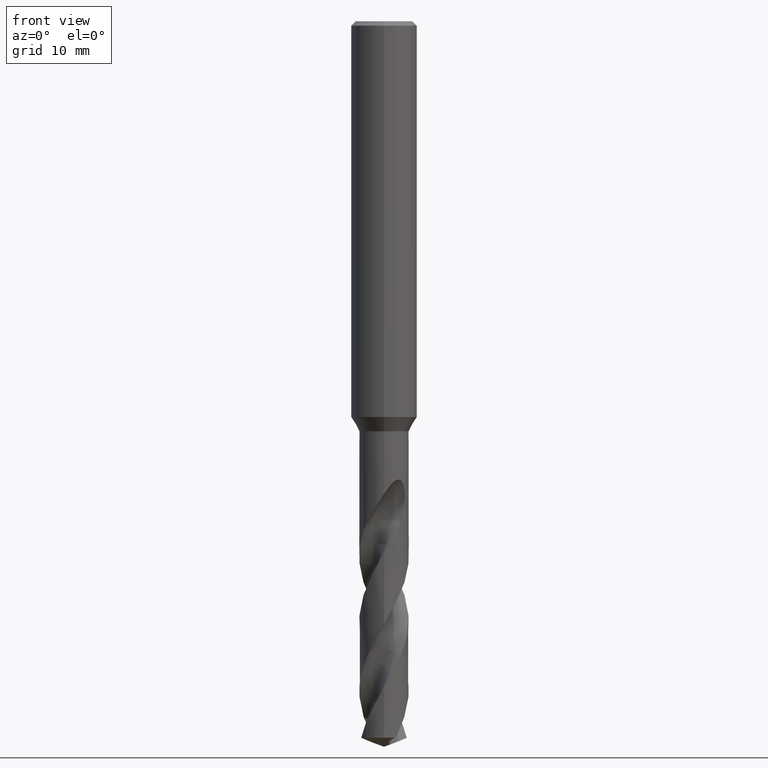
[diagram: clean part render]
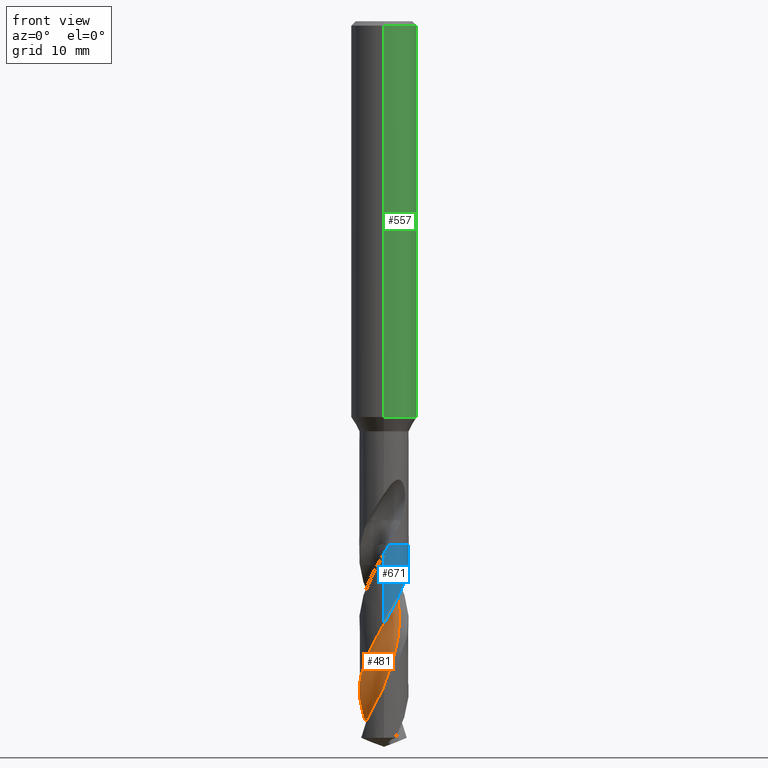
[diagram: same view with three faces highlighted in distinct colors, each labeled with its STEP entity id]
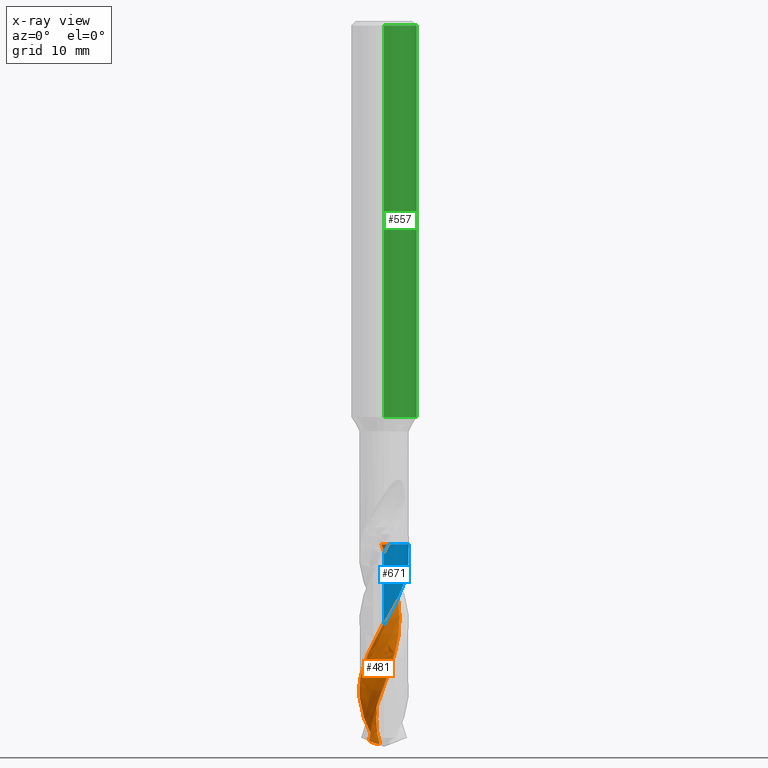
[diagram: x-ray of the same camera — body ghosted, the three highlighted faces saturated]
A machine part, front view with three faces highlighted in distinct colors.
The next image is the same camera in x-ray (body ghosted, the three faces saturated) — at least one of them is partly hidden behind the body in this view.
Their STEP definitions:

[orange] entity #481 — the highlighted face is a freeform B-spline surface patch.
#335=VERTEX_POINT('',#864);
#341=EDGE_CURVE('',#335,#753,#870,.T.);
#481=ADVANCED_FACE('',(#1023),#1024,.F.);
#615=EDGE_CURVE('',#667,#645,#1171,.T.);
#645=VERTEX_POINT('',#1206);
#667=VERTEX_POINT('',#1230);
#681=VERTEX_POINT('',#1245);
#725=EDGE_CURVE('',#645,#681,#1292,.T.);
#727=EDGE_CURVE('',#753,#667,#1294,.T.);
#753=VERTEX_POINT('',#1321);
#759=EDGE_CURVE('',#681,#335,#1327,.T.);
#864=CARTESIAN_POINT('',(4.35672677849002E-015,-2.24994116683028,-54.8375680020493));
#870=B_SPLINE_CURVE_WITH_KNOTS('',3,(#1758,#1759,#1760,#1761,#1762,#1763,#1764,#1765,#1766,#1767,#1768,#1769,#1770,#1771,#1772,#1773,#1774,#1775,#1776,#1777,#1778,#1779,#1780,#1781,#1782,#1783,#1784,#1785,#1786,#1787,#1788,#1789,#1790,#1791,#1792,#1793,#1794,#1795,#1796,#1797,#1798,#1799,#1800,#1801,#1802,#1803,#1804,#1805,#1806,#1807,#1808,#1809,#1810,#1811,#1812,#1813,#1814,#1815,#1816,#1817),.UNSPECIFIED.,.F.,.F.,(4,2,2,2,2,2,2,2,2,2,2,2,2,2,2,2,2,2,2,2,2,2,2,2,2,2,2,2,2,4),(0.0,0.853601909909963,1.63127977140847,2.504231706037,3.37787073468174,3.81238491333424,4.55730642763613,5.30153908279479,6.04699632696929,6.79174299426735,7.53771288042835,8.28297301522484,9.02943797553279,9.77527184504001,10.5222643891847,11.2686922805101,12.0162436342276,12.7632269582524,13.5113122212123,14.2588971648399,15.0075646392093,15.3458657610275,15.6615206101952,16.8516258495368,17.296264231137,18.0784674231418,18.6644412950028,19.5459813488053,19.765688042533,20.4223074424713),.UNSPECIFIED.);
#1023=FACE_OUTER_BOUND('',#2749,.T.);
#1024=B_SPLINE_SURFACE_WITH_KNOTS('',3,3,((#2750,#2751,#2752,#2753,#2754,#2755,#2756,#2757,#2758,#2759,#2760,#2761,#2762,#2763,#2764,#2765,#2766,#2767,#2768,#2769,#2770,#2771,#2772,#2773,#2774,#2775,#2776,#2777,#2778,#2779,#2780,#2781,#2782,#2783,#2784,#2785,#2786,#2787),(#2788,#2789,#2790,#2791,#2792,#2793,#2794,#2795,#2796,#2797,#2798,#2799,#2800,#2801,#2802,#2803,#2804,#2805,#2806,#2807,#2808,#2809,#2810,#2811,#2812,#2813,#2814,#2815,#2816,#2817,#2818,#2819,#2820,#2821,#2822,#2823,#2824,#2825),(#2826,#2827,#2828,#2829,#2830,#2831,#2832,#2833,#2834,#2835,#2836,#2837,#2838,#2839,#2840,#2841,#2842,#2843,#2844,#2845,#2846,#2847,#2848,#2849,#2850,#2851,#2852,#2853,#2854,#2855,#2856,#2857,#2858,#2859,#2860,#2861,#2862,#2863),(#2864,#2865,#2866,#2867,#2868,#2869,#2870,#2871,#2872,#2873,#2874,#2875,#2876,#2877,#2878,#2879,#2880,#2881,#2882,#2883,#2884,#2885,#2886,#2887,#2888,#2889,#2890,#2891,#2892,#2893,#2894,#2895,#2896,#2897,#2898,#2899,#2900,#2901),(#2902,#2903,#2904,#2905,#2906,#2907,#2908,#2909,#2910,#2911,#2912,#2913,#2914,#2915,#2916,#2917,#2918,#2919,#2920,#2921,#2922,#2923,#2924,#2925,#2926,#2927,#2928,#2929,#2930,#2931,#2932,#2933,#2934,#2935,#2936,#2937,#2938,#2939),(#2940,#2941,#2942,#2943,#2944,#2945,#2946,#2947,#2948,#2949,#2950,#2951,#2952,#2953,#2954,#2955,#2956,#2957,#2958,#2959,#2960,#2961,#2962,#2963,#2964,#2965,#2966,#2967,#2968,#2969,#2970,#2971,#2972,#2973,#2974,#2975,#2976,#2977),(#2978,#2979,#2980,#2981,#2982,#2983,#2984,#2985,#2986,#2987,#2988,#2989,#2990,#2991,#2992,#2993,#2994,#2995,#2996,#2997,#2998,#2999,#3000,#3001,#3002,#3003,#3004,#3005,#3006,#3007,#3008,#3009,#3010,#3011,#3012,#3013,#3014,#3015),(#3016,#3017,#3018,#3019,#3020,#3021,#3022,#3023,#3024,#3025,#3026,#3027,#3028,#3029,#3030,#3031,#3032,#3033,#3034,#3035,#3036,#3037,#3038,#3039,#3040,#3041,#3042,#3043,#3044,#3045,#3046,#3047,#3048,#3049,#3050,#3051,#3052,#3053),(#3054,#3055,#3056,#3057,#3058,#3059,#3060,#3061,#3062,#3063,#3064,#3065,#3066,#3067,#3068,#3069,#3070,#3071,#3072,#3073,#3074,#3075,#3076,#3077,#3078,#3079,#3080,#3081,#3082,#3083,#3084,#3085,#3086,#3087,#3088,#3089,#3090,#3091),(#3092,#3093,#3094,#3095,#3096,#3097,#3098,#3099,#3100,#3101,#3102,#3103,#3104,#3105,#3106,#3107,#3108,#3109,#3110,#3111,#3112,#3113,#3114,#3115,#3116,#3117,#3118,#3119,#3120,#3121,#3122,#3123,#3124,#3125,#3126,#3127,#3128,#3129),(#3130,#3131,#3132,#3133,#3134,#3135,#3136,#3137,#3138,#3139,#3140,#3141,#3142,#3143,#3144,#3145,#3146,#3147,#3148,#3149,#3150,#3151,#3152,#3153,#3154,#3155,#3156,#3157,#3158,#3159,#3160,#3161,#3162,#3163,#3164,#3165,#3166,#3167)),.UNSPECIFIED.,.F.,.F.,.F.,(4,1,1,1,1,1,1,1,4),(4,1,2,1,2,2,2,2,2,2,2,2,2,2,2,2,2,2,2,4),(-1.30932470691131E-017,0.392701968450189,0.785403936900378,1.17810590535057,1.57080787380076,1.96350984225095,2.35621181070114,2.74891377915132,3.14161574760151),(0.0,0.41400213322547,0.82800426645094,1.65600853290188,2.48401279935282,3.31201706580376,4.96802559870564,6.62403413160752,8.2800426645094,9.93605119741128,11.5920597303132,13.248068263215,14.9040767961169,16.5600853290188,18.2160938619207,19.8721023948226,21.5281109277244,23.1841194606263,24.8401279935282,26.4961365264301),.UNSPECIFIED.);
#1171=B_SPLINE_CURVE_WITH_KNOTS('',3,(#4991,#4992,#4993,#4994,#4995,#4996,#4997,#4998,#4999,#5000,#5001,#5002,#5003,#5004,#5005,#5006,#5007,#5008,#5009,#5010,#5011,#5012,#5013,#5014,#5015,#5016,#5017,#5018,#5019,#5020,#5021,#5022,#5023,#5024,#5025,#5026,#5027,#5028),.UNSPECIFIED.,.F.,.F.,(4,1,2,1,2,2,2,2,2,2,2,2,2,2,2,2,2,2,2,4),(0.0,0.41400213322547,0.82800426645094,1.65600853290188,2.48401279935282,3.31201706580376,4.96802559870564,6.62403413160752,8.2800426645094,9.93605119741128,11.5920597303132,13.248068263215,14.9040767961169,16.5600853290188,18.2160938619207,19.8721023948226,21.5281109277244,23.1841194606263,24.8401279935282,26.4961365264301),.UNSPECIFIED.);
#1206=CARTESIAN_POINT('',(-1.36296135958372,-0.386316287091737,-65.4843807045066));
#1230=CARTESIAN_POINT('',(-0.228372392418388,1.396039108829,-47.605));
#1245=CARTESIAN_POINT('',(-1.04147478267094,1.99444986827459,-65.1810669729011));
#1292=B_SPLINE_CURVE_WITH_KNOTS('',3,(#6104,#6105,#6106,#6107,#6108,#6109,#6110,#6111,#6112,#6113,#6114,#6115,#6116,#6117,#6118,#6119,#6120,#6121,#6122,#6123),.UNSPECIFIED.,.F.,.F.,(4,2,2,2,2,2,2,2,2,4),(0.0,0.937655198605883,1.57437014687841,2.17869260320254,2.85637029297409,3.59259860366709,4.4252928812186,5.35650907927527,5.91629192952314,6.47587422448899),.UNSPECIFIED.);
#1294=B_SPLINE_CURVE_WITH_KNOTS('',3,(#6126,#6127,#6128,#6129,#6130,#6131,#6132,#6133,#6134,#6135,#6136,#6137,#6138,#6139,#6140,#6141,#6142,#6143,#6144,#6145),.UNSPECIFIED.,.F.,.F.,(4,2,2,2,2,2,2,2,2,4),(-4.72523422912441,-4.41269780229977,-4.10010349753628,-3.51386592199827,-2.92769460358241,-2.34182867810799,-1.75632975777836,-1.17104324774457,-0.585684206618211,-0.0),.UNSPECIFIED.);
#1321=CARTESIAN_POINT('',(2.15646575794409,0.641642876413779,-47.605));
#1327=B_SPLINE_CURVE_WITH_KNOTS('',3,(#6681,#6682,#6683,#6684,#6685,#6686,#6687,#6688,#6689,#6690,#6691,#6692,#6693,#6694,#6695,#6696,#6697,#6698,#6699,#6700,#6701,#6702,#6703,#6704,#6705,#6706,#6707,#6708,#6709,#6710,#6711,#6712,#6713,#6714,#6715,#6716,#6717,#6718,#6719,#6720,#6721,#6722,#6723,#6724,#6725,#6726,#6727,#6728,#6729,#6730,#6731,#6732,#6733,#6734,#6735,#6736,#6737,#6738,#6739,#6740),.UNSPECIFIED.,.F.,.F.,(4,2,2,2,2,2,2,2,2,2,2,2,2,2,2,2,2,2,2,2,2,2,2,2,2,2,2,2,2,4),(0.0,0.853601909909963,1.63127977140847,2.504231706037,3.37787073468174,3.81238491333424,4.55730642763613,5.30153908279479,6.04699632696929,6.79174299426735,7.53771288042835,8.28297301522484,9.02943797553279,9.77527184504001,10.5222643891847,11.2686922805101,12.0162436342276,12.7632269582524,13.5113122212123,14.2588971648399,15.0075646392093,15.3458657610275,15.6615206101952,16.8516258495368,17.296264231137,18.0784674231418,18.6644412950028,19.5459813488053,19.765688042533,20.4223074424713),.UNSPECIFIED.);
#1758=CARTESIAN_POINT('',(-1.04147478267094,1.99444986827459,-65.1810669729011));
#1759=CARTESIAN_POINT('',(-1.16832020355971,1.92821132467914,-64.9351355299972));
#1760=CARTESIAN_POINT('',(-1.2878556001137,1.85039934810776,-64.6871643709768));
#1761=CARTESIAN_POINT('',(-1.49987214249809,1.68211507614997,-64.2177815801287));
#1762=CARTESIAN_POINT('',(-1.59400945845625,1.59322440703758,-63.9953925959436));
#1763=CARTESIAN_POINT('',(-1.77677713871458,1.38803432054187,-63.5210826780187));
#1764=CARTESIAN_POINT('',(-1.86270387786039,1.27040695495905,-63.2696178731984));
#1765=CARTESIAN_POINT('',(-2.01080057750766,1.01995150117117,-62.7677614523985));
#1766=CARTESIAN_POINT('',(-2.07244373240266,0.887957554881999,-62.5183363470869));
#1767=CARTESIAN_POINT('',(-2.14498692784137,0.683127235512347,-62.1421298826552));
#1768=CARTESIAN_POINT('',(-2.16582107611021,0.613898181103463,-62.0166901480412));
#1769=CARTESIAN_POINT('',(-2.21326792925661,0.423361991405694,-61.6771854333977));
#1770=CARTESIAN_POINT('',(-2.2332552880758,0.300668753633846,-61.4638751654975));
#1771=CARTESIAN_POINT('',(-2.25276866053089,0.0531484904483674,-61.0355073252858));
#1772=CARTESIAN_POINT('',(-2.2522619916368,-0.0709965225201438,-60.8206720626767));
#1773=CARTESIAN_POINT('',(-2.23084525941261,-0.317952130142945,-60.3921689448634));
#1774=CARTESIAN_POINT('',(-2.20992150035117,-0.440507544533675,-60.1788388139996));
#1775=CARTESIAN_POINT('',(-2.14803121664172,-0.680970971472079,-59.7504530136911));
#1776=CARTESIAN_POINT('',(-2.10725372371689,-0.798230899282821,-59.5356064718638));
#1777=CARTESIAN_POINT('',(-2.00683849923812,-1.02485584919435,-59.1070983772834));
#1778=CARTESIAN_POINT('',(-1.94726792388932,-1.13398178525539,-58.8937718798128));
#1779=CARTESIAN_POINT('',(-1.8106752971685,-1.341335795542,-58.4653866221444));
#1780=CARTESIAN_POINT('',(-1.73404481342486,-1.43900790151542,-58.2505380913705));
#1781=CARTESIAN_POINT('',(-1.56552376783502,-1.62074955968484,-57.8220392318818));
#1782=CARTESIAN_POINT('',(-1.47376646676733,-1.70462455080269,-57.6087204391012));
#1783=CARTESIAN_POINT('',(-1.2772671190457,-1.85641701319106,-57.1803366468045));
#1784=CARTESIAN_POINT('',(-1.17307598992508,-1.92393240815788,-56.9654848776459));
#1785=CARTESIAN_POINT('',(-0.954688876676539,-2.04113425560066,-56.5369799761959));
#1786=CARTESIAN_POINT('',(-0.84067654274413,-2.09068479002984,-56.3236642415145));
#1787=CARTESIAN_POINT('',(-0.605533464499524,-2.17048263901055,-55.8952755049769));
#1788=CARTESIAN_POINT('',(-0.485055711965857,-2.20052567308927,-55.6804208146404));
#1789=CARTESIAN_POINT('',(-0.24044036790639,-2.24049457514002,-55.2519019931306));
#1790=CARTESIAN_POINT('',(-0.11651621773962,-2.2503535600147,-55.0385839593246));
#1791=CARTESIAN_POINT('',(0.131797084292052,-2.24950267895201,-54.6101905542329));
#1792=CARTESIAN_POINT('',(0.255500986420241,-2.23881135340387,-54.3953299041661));
#1793=CARTESIAN_POINT('',(0.499822335692566,-2.19721846134909,-53.9668194664095));
#1794=CARTESIAN_POINT('',(0.620227666178268,-2.16632191670066,-53.7535122852865));
#1795=CARTESIAN_POINT('',(0.854821140008438,-2.08491779992784,-53.3251245506034));
#1796=CARTESIAN_POINT('',(0.968361827849175,-2.03464956712566,-53.1102678124136));
#1797=CARTESIAN_POINT('',(1.18594613933312,-1.91600853687386,-52.681748415839));
#1798=CARTESIAN_POINT('',(1.28979994043176,-1.8477054617993,-52.4684323685696));
#1799=CARTESIAN_POINT('',(1.43174197883884,-1.73649966841321,-52.1573461945084));
#1800=CARTESIAN_POINT('',(1.47455324119758,-1.70029134926116,-52.060590634835));
#1801=CARTESIAN_POINT('',(1.55451579219267,-1.62738080335078,-51.8732728047673));
#1802=CARTESIAN_POINT('',(1.59183425259868,-1.59089628045974,-51.7826919057215));
#1803=CARTESIAN_POINT('',(1.7638882964908,-1.41055087539068,-51.3512847062638));
#1804=CARTESIAN_POINT('',(1.88050809672226,-1.25083755085538,-51.0146803484621));
#1805=CARTESIAN_POINT('',(2.0100916617671,-1.01344383369818,-50.5464828021835));
#1806=CARTESIAN_POINT('',(2.04219413551266,-0.947101364105802,-50.4186515505213));
#1807=CARTESIAN_POINT('',(2.12168914024625,-0.759849032311532,-50.0669388420194));
#1808=CARTESIAN_POINT('',(2.16198526932879,-0.636233649201215,-49.8438829961457));
#1809=CARTESIAN_POINT('',(2.2134483615854,-0.414980744547197,-49.4518902768373));
#1810=CARTESIAN_POINT('',(2.22929691276693,-0.318979054535843,-49.2835264670507));
#1811=CARTESIAN_POINT('',(2.25332073332977,-0.0771098027417061,-48.8632921610632));
#1812=CARTESIAN_POINT('',(2.25357592088445,0.0692309610841766,-48.6129058160383));
#1813=CARTESIAN_POINT('',(2.23617677104115,0.250810114338349,-48.2976625803718));
#1814=CARTESIAN_POINT('',(2.23183173052028,0.286898418152899,-48.2347750626187));
#1815=CARTESIAN_POINT('',(2.21105912467223,0.430166777741304,-47.9836926313377));
#1816=CARTESIAN_POINT('',(2.18770493832941,0.536666160230887,-47.7935048999809));
#1817=CARTESIAN_POINT('',(2.15644947917958,0.641697576125194,-47.6049017733755));
#2749=EDGE_LOOP('',(#7127,#7128,#7129,#7130,#7131));
#2750=CARTESIAN_POINT('',(1.06066017170911,3.23566017170911,-45.407));
#2751=CARTESIAN_POINT('',(1.14736072975938,3.23227661806365,-45.5141917260661));
#2752=CARTESIAN_POINT('',(1.32261545349016,3.20806408036519,-45.7295995023112));
#2753=CARTESIAN_POINT('',(1.49792193976142,3.13960286879901,-45.9456705121325));
#2754=CARTESIAN_POINT('',(1.75398108194235,2.9970275477139,-46.2672100155361));
#2755=CARTESIAN_POINT('',(2.07723563433484,2.78304713256871,-46.6946011837618));
#2756=CARTESIAN_POINT('',(2.36405221455066,2.52939047762122,-47.1235060588852));
#2757=CARTESIAN_POINT('',(2.63003982795739,2.2577874336785,-47.5538623823046));
#2758=CARTESIAN_POINT('',(2.75141224280572,2.1100416833231,-47.7688199545863));
#2759=CARTESIAN_POINT('',(3.07267669175427,1.63424876400578,-48.4118104663416));
#2760=CARTESIAN_POINT('',(3.23642495354036,1.28408573848447,-48.8406441099065));
#2761=CARTESIAN_POINT('',(3.43721767782874,0.546024943184121,-49.6993284080551));
#2762=CARTESIAN_POINT('',(3.47852429859728,0.161956636037567,-50.1285717918827));
#2763=CARTESIAN_POINT('',(3.42792630517076,-0.601211252523115,-50.9867447250117));
#2764=CARTESIAN_POINT('',(3.34210936479402,-0.977906109019783,-51.4158655733483));
#2765=CARTESIAN_POINT('',(3.04617667993736,-1.68323381701964,-52.2741869745453));
#2766=CARTESIAN_POINT('',(2.84251350486685,-2.01152845946812,-52.7033380505583));
#2767=CARTESIAN_POINT('',(2.33329406858569,-2.58226790887175,-53.5616168908764));
#2768=CARTESIAN_POINT('',(2.03394709755869,-2.82650493612754,-53.9907607620749));
#2769=CARTESIAN_POINT('',(1.3668068269964,-3.20064346682888,-54.8490566134169));
#2770=CARTESIAN_POINT('',(1.00431415883268,-3.33426127413372,-55.2782010047214));
#2771=CARTESIAN_POINT('',(0.251792820373025,-3.4711641065038,-56.1364905364319));
#2772=CARTESIAN_POINT('',(-0.1344507893595,-3.4796634040678,-56.5656364336138));
#2773=CARTESIAN_POINT('',(-0.890605126553836,-3.36440831671455,-57.423922719063));
#2774=CARTESIAN_POINT('',(-1.25862480435107,-3.24684008981195,-57.8530678450178));
#2775=CARTESIAN_POINT('',(-1.93620458697357,-2.89195103820916,-58.7113602084703));
#2776=CARTESIAN_POINT('',(-2.24598779245221,-2.66110467636743,-59.1405051668395));
#2777=CARTESIAN_POINT('',(-2.77135844752933,-2.10521695534624,-59.9988005390435));
#2778=CARTESIAN_POINT('',(-2.98924617371244,-1.78619014277427,-60.4279417640526));
#2779=CARTESIAN_POINT('',(-3.30531763714579,-1.08965423906688,-61.2862132745725));
#2780=CARTESIAN_POINT('',(-3.40765356609516,-0.71709403990616,-61.7153778163067));
#2781=CARTESIAN_POINT('',(-3.47992012900564,0.0443641732257222,-62.5737133690458));
#2782=CARTESIAN_POINT('',(-3.45548256947847,0.429838517118077,-63.0027822208322));
#2783=CARTESIAN_POINT('',(-3.27694025627906,1.17349453856882,-63.860929440834));
#2784=CARTESIAN_POINT('',(-3.12848959132681,1.5305294787629,-64.2902915190901));
#2785=CARTESIAN_POINT('',(-2.71472324710996,2.17440436782346,-65.148530505182));
#2786=CARTESIAN_POINT('',(-2.45943938845844,2.46236855869644,-65.5767894282341));
#2787=CARTESIAN_POINT('',(-2.16521744120838,2.70336496881354,-66.0058249218839));
#2788=CARTESIAN_POINT('',(1.19949594513028,3.0968137205744,-45.4069999999999));
#2789=CARTESIAN_POINT('',(1.28639988875936,3.09363353686447,-45.5141975596077));
#2790=CARTESIAN_POINT('',(1.45975564326191,3.06746428417073,-45.7297265101715));
#2791=CARTESIAN_POINT('',(1.62819859944381,2.99255738328638,-45.9459867984099));
#2792=CARTESIAN_POINT('',(1.86951943794712,2.83775592462213,-46.2674666792346));
#2793=CARTESIAN_POINT('',(2.17289333662039,2.61047516571817,-46.6946289778706));
#2794=CARTESIAN_POINT('',(2.44013211349704,2.34807936557383,-47.1234965137139));
#2795=CARTESIAN_POINT('',(2.68654499296393,2.06945545451482,-47.5540196860131));
#2796=CARTESIAN_POINT('',(2.79756828303582,1.91887269194221,-47.7690312582554));
#2797=CARTESIAN_POINT('',(3.0862020170441,1.43712014762252,-48.4119215133952));
#2798=CARTESIAN_POINT('',(3.22834862918883,1.08669022405613,-48.840711497423));
#2799=CARTESIAN_POINT('',(3.38598779486349,0.355222603624654,-49.6994503080105));
#2800=CARTESIAN_POINT('',(3.40678667945616,-0.0221258288449719,-50.1287074604474));
#2801=CARTESIAN_POINT('',(3.31742124162945,-0.764982744653492,-50.9868641951544));
#2802=CARTESIAN_POINT('',(3.21440721447098,-1.12865250369411,-51.415981652127));
#2803=CARTESIAN_POINT('',(2.8884287160349,-1.80217800849014,-52.2743073917286));
#2804=CARTESIAN_POINT('',(2.67273350732963,-2.11255898467023,-52.7034593140569));
#2805=CARTESIAN_POINT('',(2.14544051494832,-2.64345027126781,-53.5617366012775));
#2806=CARTESIAN_POINT('',(1.84054129135846,-2.86683617342396,-53.9908803005177));
#2807=CARTESIAN_POINT('',(1.16926741649111,-3.19741500409648,-54.8491769733327));
#2808=CARTESIAN_POINT('',(0.80830485352975,-3.30950973752776,-55.2783212698576));
#2809=CARTESIAN_POINT('',(0.0660371321791816,-3.4038815851795,-56.136610724555));
#2810=CARTESIAN_POINT('',(-0.311762008595465,-3.39252478483521,-56.5657567389829));
#2811=CARTESIAN_POINT('',(-1.04438755716835,-3.24037929335299,-57.4240425110113));
#2812=CARTESIAN_POINT('',(-1.39796390596466,-3.10677918188219,-57.8531876638817));
#2813=CARTESIAN_POINT('',(-2.04129624246489,-2.72465485200206,-58.7114803097156));
#2814=CARTESIAN_POINT('',(-2.33220877084458,-2.48334577766726,-59.140625219335));
#2815=CARTESIAN_POINT('',(-2.81634405824529,-1.91284127201819,-59.9989214386832));
#2816=CARTESIAN_POINT('',(-3.01298375696743,-1.59005528930541,-60.428062309614));
#2817=CARTESIAN_POINT('',(-3.28530460489859,-0.893104859381725,-61.2863307396098));
#2818=CARTESIAN_POINT('',(-3.36632615967513,-0.523897760854679,-61.7154972742734));
#2819=CARTESIAN_POINT('',(-3.39706787550415,0.223718812516787,-62.5738412984534));
#2820=CARTESIAN_POINT('',(-3.35357093259137,0.599085249820378,-63.0029023821345));
#2821=CARTESIAN_POINT('',(-3.14034025081358,1.31622053657424,-63.8610275763899));
#2822=CARTESIAN_POINT('',(-2.9770949921942,1.65749757756014,-64.2904148406701));
#2823=CARTESIAN_POINT('',(-2.53891294120576,2.26458070022763,-65.1486935655212));
#2824=CARTESIAN_POINT('',(-2.27504775581611,2.53305334082282,-65.576881226751));
#2825=CARTESIAN_POINT('',(-1.97542943972371,2.75370590963872,-66.0059395676202));
#2826=CARTESIAN_POINT('',(1.42189471168542,2.76396924658392,-45.407));
#2827=CARTESIAN_POINT('',(1.50928621278218,2.76111483814774,-45.5142071540128));
#2828=CARTESIAN_POINT('',(1.67806670767501,2.73178814588393,-45.7299353971024));
#2829=CARTESIAN_POINT('',(1.83022238346579,2.64672180133315,-45.9465069882345));
#2830=CARTESIAN_POINT('',(2.03721087086108,2.47333416035787,-46.2678888078841));
#2831=CARTESIAN_POINT('',(2.29554268693177,2.22736427888723,-46.6946746898608));
#2832=CARTESIAN_POINT('',(2.52015888283792,1.95527924870977,-47.1234808165498));
#2833=CARTESIAN_POINT('',(2.72463858355621,1.67040069677122,-47.5542783985575));
#2834=CARTESIAN_POINT('',(2.81383981534743,1.51826053683945,-47.7693787866098));
#2835=CARTESIAN_POINT('',(3.03485591388044,1.03756738755983,-48.4121041469249));
#2836=CARTESIAN_POINT('',(3.13370219027943,0.695193999379811,-48.8408223316814));
#2837=CARTESIAN_POINT('',(3.20767429449549,-0.00592942656711115,-49.6996507909065));
#2838=CARTESIAN_POINT('',(3.1901385856607,-0.361685750397055,-50.1289306018632));
#2839=CARTESIAN_POINT('',(3.0313315374132,-1.04851282566422,-50.9870606750425));
#2840=CARTESIAN_POINT('',(2.8991101959838,-1.37929920626298,-51.4161725671816));
#2841=CARTESIAN_POINT('',(2.52569933390141,-1.97728554218442,-52.2745054366442));
#2842=CARTESIAN_POINT('',(2.29306875913826,-2.24706201689905,-52.7036587539922));
#2843=CARTESIAN_POINT('',(1.74548244615885,-2.69108654587151,-53.5619334860818));
#2844=CARTESIAN_POINT('',(1.43777281588903,-2.87057104894248,-53.9910769321458));
#2845=CARTESIAN_POINT('',(0.775555620659253,-3.11240502366858,-54.8493748975309));
#2846=CARTESIAN_POINT('',(0.426211585557159,-3.18207114358189,-55.2785190632148));
#2847=CARTESIAN_POINT('',(-0.278640157679488,-3.19547643450599,-56.1368083996579));
#2848=CARTESIAN_POINT('',(-0.631657851291743,-3.14777386033831,-56.5659546015479));
#2849=CARTESIAN_POINT('',(-1.3025657249981,-2.93121966248375,-57.4242395314902));
#2850=CARTESIAN_POINT('',(-1.620886187662,-2.77130612835489,-57.8533847231744));
#2851=CARTESIAN_POINT('',(-2.18490754814477,-2.3483417055039,-58.7116778420156));
#2852=CARTESIAN_POINT('',(-2.43392601494905,-2.09361581169854,-59.1408226359993));
#2853=CARTESIAN_POINT('',(-2.82979536391548,-1.51028172712418,-59.9991203109541));
#2854=CARTESIAN_POINT('',(-2.98245305409212,-1.1884285811985,-60.4282605988369));
#2855=CARTESIAN_POINT('',(-3.16712626554839,-0.508047330675275,-61.2865239014599));
#2856=CARTESIAN_POINT('',(-3.20686143575249,-0.154020995015561,-61.7156937703371));
#2857=CARTESIAN_POINT('',(-3.16007529580119,0.549405172340298,-62.5740516752367));
#2858=CARTESIAN_POINT('',(-3.08248715029075,0.896980816014883,-63.0031000059841));
#2859=CARTESIAN_POINT('',(-2.81044070905548,1.54729144968402,-63.8611889808139));
#2860=CARTESIAN_POINT('',(-2.62387884152975,1.85117606322895,-64.2906176154628));
#2861=CARTESIAN_POINT('',(-2.15150641061927,2.37498188026334,-65.1489617970833));
#2862=CARTESIAN_POINT('',(-1.87823330926009,2.6010671330095,-65.5770321549954));
#2863=CARTESIAN_POINT('',(-1.57591454973933,2.77889464438708,-66.0061281230755));
#2864=CARTESIAN_POINT('',(1.53905381357198,2.17500039525115,-45.4069999999999));
#2865=CARTESIAN_POINT('',(1.62730805005974,2.17231760411955,-45.5142131431363));
#2866=CARTESIAN_POINT('',(1.78793497694334,2.14124139820747,-45.7300657972334));
#2867=CARTESIAN_POINT('',(1.91168592151352,2.05144411282808,-45.9468317226429));
#2868=CARTESIAN_POINT('',(2.06042245584703,1.8720059942035,-46.2681523263184));
#2869=CARTESIAN_POINT('',(2.24560013103643,1.62599115175413,-46.694703226338));
#2870=CARTESIAN_POINT('',(2.40558221055156,1.36494512573591,-47.1234710170316));
#2871=CARTESIAN_POINT('',(2.54835491436648,1.09546983240454,-47.55443990316));
#2872=CARTESIAN_POINT('',(2.60641823994414,0.95369812527225,-47.7695957346632));
#2873=CARTESIAN_POINT('',(2.73432892429935,0.513289558890436,-48.4122181588177));
#2874=CARTESIAN_POINT('',(2.77778875324968,0.206938728488394,-48.8408915175722));
#2875=CARTESIAN_POINT('',(2.75322311960583,-0.404100356755158,-49.6997759482489));
#2876=CARTESIAN_POINT('',(2.69495326523171,-0.707925374847884,-50.1290698916031));
#2877=CARTESIAN_POINT('',(2.47206894912491,-1.27723562708287,-50.9871833386202));
#2878=CARTESIAN_POINT('',(2.31824506488326,-1.54568128308487,-51.4162917416164));
#2879=CARTESIAN_POINT('',(1.92245965941983,-2.01174669383021,-52.2746290748442));
#2880=CARTESIAN_POINT('',(1.68966696617923,-2.21552624459158,-52.7037832571452));
#2881=CARTESIAN_POINT('',(1.16382166313825,-2.52750983323194,-53.5620563931041));
#2882=CARTESIAN_POINT('',(0.877418750581155,-2.64453662092748,-53.9911996776424));
#2883=CARTESIAN_POINT('',(0.278697817706386,-2.76857520739199,-54.8494984579461));
#2884=CARTESIAN_POINT('',(-0.0301874238072702,-2.78610777823377,-55.2786425479746));
#2885=CARTESIAN_POINT('',(-0.636703980563139,-2.7087776414275,-56.1369317905296));
#2886=CARTESIAN_POINT('',(-0.934511832088951,-2.62492814621573,-56.5660781273938));
#2887=CARTESIAN_POINT('',(-1.48290910309628,-2.35453706702513,-57.4243625158251));
#2888=CARTESIAN_POINT('',(-1.73726195805826,-2.17839366680727,-57.8535077405306));
#2889=CARTESIAN_POINT('',(-2.16791923304552,-1.74435637482667,-58.7118011529006));
#2890=CARTESIAN_POINT('',(-2.35117337158206,-1.49508510674888,-59.1409458897536));
#2891=CARTESIAN_POINT('',(-2.61734719090876,-0.944639477228604,-59.99924444503));
#2892=CARTESIAN_POINT('',(-2.70958427761619,-0.649327203045723,-60.4283843815159));
#2893=CARTESIAN_POINT('',(-2.78229534078006,-0.0422241866634279,-61.2866444865137));
#2894=CARTESIAN_POINT('',(-2.77352494794383,0.267062045190975,-61.7158164359341));
#2895=CARTESIAN_POINT('',(-2.64465804338314,0.86473813404634,-62.5741830045952));
#2896=CARTESIAN_POINT('',(-2.53577520909391,1.1542274137128,-63.003223374021));
#2897=CARTESIAN_POINT('',(-2.22057501830335,1.67816015482763,-63.8612897402221));
#2898=CARTESIAN_POINT('',(-2.02316314623574,1.91683640497223,-64.2907442325434));
#2899=CARTESIAN_POINT('',(-1.55121073884549,2.30559840793195,-65.1491292110259));
#2900=CARTESIAN_POINT('',(-1.28923162204658,2.4675368841793,-65.5771263865948));
#2901=CARTESIAN_POINT('',(-1.00775407734589,2.58446155370995,-66.0062458309368));
#2902=CARTESIAN_POINT('',(1.42190438805685,1.58602961915483,-45.4070000000001));
#2903=CARTESIAN_POINT('',(1.51102136220483,1.58317522493517,-45.5142098171594));
#2904=CARTESIAN_POINT('',(1.66344583089171,1.55360296307073,-45.7299933844532));
#2905=CARTESIAN_POINT('',(1.75914432814794,1.47030473956289,-45.9466513928298));
#2906=CARTESIAN_POINT('',(1.85174751075974,1.30756895870797,-46.2680059914861));
#2907=CARTESIAN_POINT('',(1.96932205748807,1.08950784919174,-46.6946873799537));
#2908=CARTESIAN_POINT('',(2.07381460589562,0.863395090647973,-47.1234764576048));
#2909=CARTESIAN_POINT('',(2.16547225401941,0.631764852685634,-47.5543502186536));
#2910=CARTESIAN_POINT('',(2.19873588251139,0.511488266203155,-47.7694752610772));
#2911=CARTESIAN_POINT('',(2.25604469712779,0.143928040472595,-48.4121548450931));
#2912=CARTESIAN_POINT('',(2.26211951275347,-0.107946675735736,-48.8408530949471));
#2913=CARTESIAN_POINT('',(2.18099102175322,-0.598049816066792,-49.6997064493862));
#2914=CARTESIAN_POINT('',(2.10496114726705,-0.838308252525893,-50.1289925352797));
#2915=CARTESIAN_POINT('',(1.86784926170974,-1.27452574854124,-50.9871152286397));
#2916=CARTESIAN_POINT('',(1.71792417697626,-1.47710915564568,-51.4162255681307));
#2917=CARTESIAN_POINT('',(1.35195169982119,-1.81273323936575,-52.2745604111146));
#2918=CARTESIAN_POINT('',(1.14426532665904,-1.95547760961683,-52.7037141198885));
#2919=CARTESIAN_POINT('',(0.689036292454081,-2.1537913995517,-53.5619881400666));
#2920=CARTESIAN_POINT('',(0.446219890787367,-2.22126862779016,-53.9911315039495));
#2921=CARTESIAN_POINT('',(-0.0487595660779428,-2.26077771553409,-54.8494298545551));
#2922=CARTESIAN_POINT('',(-0.300315019318603,-2.24562823924405,-55.2785739723111));
#2923=CARTESIAN_POINT('',(-0.781258637919256,-2.12210108548621,-56.1368632727385));
#2924=CARTESIAN_POINT('',(-1.01422638382285,-2.02598426453582,-56.5660095346156));
#2925=CARTESIAN_POINT('',(-1.42883612133759,-1.75273753601074,-57.4242942180858));
#2926=CARTESIAN_POINT('',(-1.61787973991593,-1.58607922288397,-57.8534394308535));
#2927=CARTESIAN_POINT('',(-1.92108737016068,-1.19284850732162,-58.7117326730974));
#2928=CARTESIAN_POINT('',(-2.04567067132303,-0.973783739366805,-59.1408774530942));
#2929=CARTESIAN_POINT('',(-2.20460753119652,-0.503355707884018,-59.999175503807));
#2930=CARTESIAN_POINT('',(-2.25118013645905,-0.255686097003739,-60.4283156425413));
#2931=CARTESIAN_POINT('',(-2.24849434113502,0.240870395823138,-61.2865775247046));
#2932=CARTESIAN_POINT('',(-2.21203210533375,0.490259805422478,-61.7157483109129));
#2933=CARTESIAN_POINT('',(-2.04780162990896,0.958824525657945,-62.5741100827049));
#2934=CARTESIAN_POINT('',(-1.93223513615731,1.18267301171943,-63.0031548674006));
#2935=CARTESIAN_POINT('',(-1.6255291817209,1.5733335775818,-63.8612337857687));
#2936=CARTESIAN_POINT('',(-1.44304754574595,1.74761310783761,-64.2906739189662));
#2937=CARTESIAN_POINT('',(-1.02316252901448,2.01177182134689,-65.149036245107));
#2938=CARTESIAN_POINT('',(-0.796165811211524,2.11876844122628,-65.5770740642928));
#2939=CARTESIAN_POINT('',(-0.557249662220158,2.18740194776434,-66.006180466132));
#2940=CARTESIAN_POINT('',(1.08828163204511,1.08672368121175,-45.407));
#2941=CARTESIAN_POINT('',(1.17813000108896,1.08338058997486,-45.5141976824509));
#2942=CARTESIAN_POINT('',(1.32355188857131,1.05833676351866,-45.7297291826223));
#2943=CARTESIAN_POINT('',(1.39582101431262,0.991778166182936,-45.9459934537375));
#2944=CARTESIAN_POINT('',(1.44295536716186,0.865954724736004,-46.2674720799321));
#2945=CARTESIAN_POINT('',(1.50876990697349,0.699590275396716,-46.6946295626174));
#2946=CARTESIAN_POINT('',(1.57536541437052,0.526986697521402,-47.1234963130944));
#2947=CARTESIAN_POINT('',(1.63428186050894,0.349881662148282,-47.5540229957746));
#2948=CARTESIAN_POINT('',(1.65285958702398,0.258954378216342,-47.7690357045279));
#2949=CARTESIAN_POINT('',(1.67281872710922,-0.0142844070077466,-48.4119238500326));
#2950=CARTESIAN_POINT('',(1.66520157644551,-0.201523068310688,-48.840712917928));
#2951=CARTESIAN_POINT('',(1.57809641383882,-0.558250329873793,-49.6994528705026));
#2952=CARTESIAN_POINT('',(1.50998448419676,-0.732984486159462,-50.1287103179213));
#2953=CARTESIAN_POINT('',(1.31066078307797,-1.04079574846546,-50.9868667063206));
#2954=CARTESIAN_POINT('',(1.18954226561657,-1.18402246014365,-51.4159841005146));
#2955=CARTESIAN_POINT('',(0.90103138705701,-1.41054361297931,-52.2743099197023));
#2956=CARTESIAN_POINT('',(0.739897497953106,-1.50650674147899,-52.7034618649002));
#2957=CARTESIAN_POINT('',(0.393409155048339,-1.62682730668054,-53.5617391210186));
#2958=CARTESIAN_POINT('',(0.209823313448864,-1.66520671095218,-53.9908828118129));
#2959=CARTESIAN_POINT('',(-0.15696339558524,-1.66632124375707,-54.8491795099893));
#2960=CARTESIAN_POINT('',(-0.343046129282046,-1.64291683030692,-55.2783238011537));
#2961=CARTESIAN_POINT('',(-0.690296671336165,-1.52476425112021,-56.1366132528904));
#2962=CARTESIAN_POINT('',(-0.858665511508699,-1.44212731124069,-56.5657592734151));
#2963=CARTESIAN_POINT('',(-1.14857902146544,-1.21744092627538,-57.4240450287189));
#2964=CARTESIAN_POINT('',(-1.2809146566074,-1.08453860709149,-57.8531901873773));
#2965=CARTESIAN_POINT('',(-1.48199041933915,-0.777781397816562,-58.711482834631));
#2966=CARTESIAN_POINT('',(-1.56392860533592,-0.609076271457145,-59.1406277375886));
#2967=CARTESIAN_POINT('',(-1.65441316894212,-0.253612845162087,-59.998923990554));
#2968=CARTESIAN_POINT('',(-1.67702952778477,-0.0674344204103474,-60.4280648528404));
#2969=CARTESIAN_POINT('',(-1.64699079998301,0.298137204968308,-61.2863332046193));
#2970=CARTESIAN_POINT('',(-1.60786634735588,0.481591955349524,-61.7154997986689));
#2971=CARTESIAN_POINT('',(-1.46037334901301,0.817340340556059,-62.5738439796004));
#2972=CARTESIAN_POINT('',(-1.36375177096584,0.977986963834323,-63.0029049114093));
#2973=CARTESIAN_POINT('',(-1.11589484753264,1.24877084459812,-63.8610296405248));
#2974=CARTESIAN_POINT('',(-0.971850664688239,1.36926926314699,-64.2904174090182));
#2975=CARTESIAN_POINT('',(-0.64775349950091,1.53823519950228,-65.1486970232311));
#2976=CARTESIAN_POINT('',(-0.474101764498229,1.60785941377447,-65.5768831607722));
#2977=CARTESIAN_POINT('',(-0.292987513090558,1.64816542947607,-66.0059419800032));
#2978=CARTESIAN_POINT('',(0.588977322957305,0.753098487436611,-45.4069999999999));
#2979=CARTESIAN_POINT('',(0.679314394496776,0.74902400365044,-45.5141785860484));
#2980=CARTESIAN_POINT('',(0.819999672590165,0.730843683933754,-45.7293134150633));
#2981=CARTESIAN_POINT('',(0.877029463387333,0.688716783587149,-45.944958071661));
#2982=CARTESIAN_POINT('',(0.896281827112514,0.614396030515105,-46.2666318768733));
#2983=CARTESIAN_POINT('',(0.934059588961545,0.515600708033243,-46.6945385770036));
#2984=CARTESIAN_POINT('',(0.986120103691708,0.406935818958334,-47.1235275590318));
#2985=CARTESIAN_POINT('',(1.03565383415143,0.292735043050941,-47.55350805357));
#2986=CARTESIAN_POINT('',(1.05189527906219,0.23454301771728,-47.7683439884894));
#2987=CARTESIAN_POINT('',(1.07344316602768,0.0627389704830668,-48.4115603330473));
#2988=CARTESIAN_POINT('',(1.07791160719946,-0.059544088821852,-48.8404923173798));
#2989=CARTESIAN_POINT('',(1.03632586742243,-0.290761093267782,-49.6990538273691));
#2990=CARTESIAN_POINT('',(1.00060440228089,-0.40798889856653,-50.1282661932246));
#2991=CARTESIAN_POINT('',(0.885331631020097,-0.611629415562468,-50.9864756194449));
#2992=CARTESIAN_POINT('',(0.813541866258715,-0.711041633367831,-51.415604099457));
#2993=CARTESIAN_POINT('',(0.638348235600886,-0.866408431356931,-52.273915737307));
#2994=CARTESIAN_POINT('',(0.538125715470485,-0.936966373012785,-52.7030649015904));
#2995=CARTESIAN_POINT('',(0.321947450223903,-1.02684422898574,-53.561347242086));
#2996=CARTESIAN_POINT('',(0.204218768877282,-1.06100749432341,-53.9904914871727));
#2997=CARTESIAN_POINT('',(-0.0294403716255488,-1.07570770533329,-54.848785513232));
#2998=CARTESIAN_POINT('',(-0.151875233230344,-1.06973222984478,-55.2779301158454));
#2999=CARTESIAN_POINT('',(-0.377666418549042,-1.00770757790847,-56.1362198002968));
#3000=CARTESIAN_POINT('',(-0.491512292352929,-0.96224550997473,-56.5653654417892));
#3001=CARTESIAN_POINT('',(-0.684805024747781,-0.830142471684807,-57.4236528876462));
#3002=CARTESIAN_POINT('',(-0.77766733075074,-0.750127935052924,-57.8527979537779));
#3003=CARTESIAN_POINT('',(-0.917477882292941,-0.5623461729763,-58.711089675634));
#3004=CARTESIAN_POINT('',(-0.97928910356501,-0.456486913420153,-59.1402347667689));
#3005=CARTESIAN_POINT('',(-1.05052742086543,-0.233432529081743,-59.9985281903856));
#3006=CARTESIAN_POINT('',(-1.07454294261542,-0.113232196086622,-60.427670209415));
#3007=CARTESIAN_POINT('',(-1.06935951080708,0.120857757311904,-61.2859487063269));
#3008=CARTESIAN_POINT('',(-1.05300776935021,0.242378114845317,-61.7151087202557));
#3009=CARTESIAN_POINT('',(-0.971805128690941,0.46182557684092,-62.5734252208794));
#3010=CARTESIAN_POINT('',(-0.916872805948517,0.571331316311972,-63.0025115503987));
#3011=CARTESIAN_POINT('',(-0.769260351903042,0.753884408193807,-63.8607083939309));
#3012=CARTESIAN_POINT('',(-0.681308993512792,0.83940512187585,-64.2900137795766));
#3013=CARTESIAN_POINT('',(-0.482137105753161,0.957081252305652,-65.1481631646168));
#3014=CARTESIAN_POINT('',(-0.372071533655441,1.01259219262426,-65.5765826980152));
#3015=CARTESIAN_POINT('',(-0.255199730487654,1.04884706196941,-66.00556668043));
#3016=CARTESIAN_POINT('',(7.11882745754733E-006,0.635946186384275,-45.407));
#3017=CARTESIAN_POINT('',(0.0905157978755606,0.631008965532196,-45.5141554351326));
#3018=CARTESIAN_POINT('',(0.229451555861734,0.620982300078537,-45.728809379606));
#3019=CARTESIAN_POINT('',(0.28175213300942,0.607259608990792,-45.9437028764005));
#3020=CARTESIAN_POINT('',(0.294954188056277,0.591190963893939,-46.265613297511));
#3021=CARTESIAN_POINT('',(0.332686808159812,0.565550299376068,-46.6944282755683));
#3022=CARTESIAN_POINT('',(0.395787236510298,0.521519372966836,-47.1235654373532));
#3023=CARTESIAN_POINT('',(0.460725184289153,0.469025181608112,-47.5528837895439));
#3024=CARTESIAN_POINT('',(0.487335654397516,0.441970647813895,-47.7675054195251));
#3025=CARTESIAN_POINT('',(0.549168834286848,0.363271890110037,-48.4111196420262));
#3026=CARTESIAN_POINT('',(0.589660472804715,0.296374936188254,-48.8402248838578));
#3027=CARTESIAN_POINT('',(0.638160237847611,0.163694491539822,-49.6985700659334));
#3028=CARTESIAN_POINT('',(0.654370519315603,0.0872001635077791,-50.1277277713651));
#3029=CARTESIAN_POINT('',(0.65661526062956,-0.0523643852597516,-50.9860015130694));
#3030=CARTESIAN_POINT('',(0.647166455146673,-0.130174765131785,-51.4151434343608));
#3031=CARTESIAN_POINT('',(0.603893961268443,-0.263168544035079,-52.2734378586528));
#3032=CARTESIAN_POINT('',(0.569668345820246,-0.333565120466216,-52.702583661474));
#3033=CARTESIAN_POINT('',(0.485530736635866,-0.44518547712394,-53.5608721675791));
#3034=CARTESIAN_POINT('',(0.430259513570397,-0.500656168857403,-53.9900170547138));
#3035=CARTESIAN_POINT('',(0.314394996639353,-0.578853960122098,-54.848307899386));
#3036=CARTESIAN_POINT('',(0.244093213556285,-0.613337862831112,-55.277452822164));
#3037=CARTESIAN_POINT('',(0.109036304666011,-0.649649400547063,-56.1357428455244));
#3038=CARTESIAN_POINT('',(0.0313367125754613,-0.659397568158272,-56.5648879973739));
#3039=CARTESIAN_POINT('',(-0.108120542237386,-0.649805713740405,-57.4231774961869));
#3040=CARTESIAN_POINT('',(-0.184753718127475,-0.633758950853123,-57.8523224538335));
#3041=CARTESIAN_POINT('',(-0.313492922245549,-0.579341357001306,-58.7106130429635));
#3042=CARTESIAN_POINT('',(-0.380759513612785,-0.539246346885527,-59.1397583697902));
#3043=CARTESIAN_POINT('',(-0.484887760612351,-0.445887076456549,-59.9980483591252));
#3044=CARTESIAN_POINT('',(-0.535444832024206,-0.386107031252846,-60.4271917808446));
#3045=CARTESIAN_POINT('',(-0.603540878500572,-0.263978361999349,-61.2854825802354));
#3046=CARTESIAN_POINT('',(-0.631929787011393,-0.190963045967778,-61.7146346030696));
#3047=CARTESIAN_POINT('',(-0.656478129987721,-0.0535950828312035,-62.5729175713032));
#3048=CARTESIAN_POINT('',(-0.659632502943412,0.0246166050022681,-63.0020347056325));
#3049=CARTESIAN_POINT('',(-0.638398417377523,0.164017334196515,-63.8603189188407));
#3050=CARTESIAN_POINT('',(-0.615655511536201,0.238688864878427,-64.2895244103848));
#3051=CARTESIAN_POINT('',(-0.551527306609052,0.356786686188784,-65.1475160156331));
#3052=CARTESIAN_POINT('',(-0.505608517878795,0.423592136148867,-65.576218427299));
#3053=CARTESIAN_POINT('',(-0.449639245255995,0.480688958015939,-66.0051117042035));
#3054=CARTESIAN_POINT('',(-0.58896924664008,0.75309547076557,-45.407));
#3055=CARTESIAN_POINT('',(-0.498632169846681,0.747295504704337,-45.5141317544737));
#3056=CARTESIAN_POINT('',(-0.358192589620242,0.745471397021627,-45.7282938062314));
#3057=CARTESIAN_POINT('',(-0.299391436625354,0.759801424524906,-45.9424189488436));
#3058=CARTESIAN_POINT('',(-0.269487502255149,0.79986656046705,-46.2645714018624));
#3059=CARTESIAN_POINT('',(-0.203802180573743,0.841829781003214,-46.6943154487692));
#3060=CARTESIAN_POINT('',(-0.10576812169781,0.853288999233908,-47.1236041839032));
#3061=CARTESIAN_POINT('',(-0.00298455911580417,0.851910282798681,-47.5522452344622));
#3062=CARTESIAN_POINT('',(0.0451214853934341,0.849655521492165,-47.7666476529191));
#3063=CARTESIAN_POINT('',(0.1798030517001,0.841559607258707,-48.4106688675277));
#3064=CARTESIAN_POINT('',(0.274771198121656,0.812048188627902,-48.8399513309538));
#3065=CARTESIAN_POINT('',(0.444207965684492,0.735931228677915,-49.6980752284409));
#3066=CARTESIAN_POINT('',(0.523985365296727,0.677197146063349,-50.1271770341611));
#3067=CARTESIAN_POINT('',(0.659323983411975,0.551860601443975,-50.9855165444761));
#3068=CARTESIAN_POINT('',(0.71573800404855,0.470151532508905,-51.4146722208708));
#3069=CARTESIAN_POINT('',(0.802908050173551,0.307344797398703,-52.272949044394));
#3070=CARTESIAN_POINT('',(0.829718186627888,0.211841801156453,-52.7020914051938));
#3071=CARTESIAN_POINT('',(0.859251522403619,0.0296047839809595,-53.5603862184464));
#3072=CARTESIAN_POINT('',(0.853530374775069,-0.0694527065991147,-53.9895317576543));
#3073=CARTESIAN_POINT('',(0.82219629493047,-0.251392713111647,-54.8478193570564));
#3074=CARTESIAN_POINT('',(0.784576959649292,-0.343206840130521,-55.2769646288643));
#3075=CARTESIAN_POINT('',(0.695717716518058,-0.505092336124798,-56.1352549468811));
#3076=CARTESIAN_POINT('',(0.630285686211644,-0.579681146169864,-56.5643996292904));
#3077=CARTESIAN_POINT('',(0.493684365551545,-0.703877995116423,-57.4226912172419));
#3078=CARTESIAN_POINT('',(0.40756614929051,-0.753141057499576,-57.851836063495));
#3079=CARTESIAN_POINT('',(0.238020258054374,-0.826174304734954,-58.7101255056223));
#3080=CARTESIAN_POINT('',(0.140547014002072,-0.844750699818307,-59.1392710631884));
#3081=CARTESIAN_POINT('',(-0.0435993183908479,-0.858629493770858,-59.9975575486713));
#3082=CARTESIAN_POINT('',(-0.141799383513087,-0.844514414566632,-60.4267023938389));
#3083=CARTESIAN_POINT('',(-0.320442766162773,-0.7977834937215,-61.2850057909828));
#3084=CARTESIAN_POINT('',(-0.408728979856509,-0.75246037227851,-61.7141496386358));
#3085=CARTESIAN_POINT('',(-0.562389755545933,-0.650456518901144,-62.5723982955665));
#3086=CARTESIAN_POINT('',(-0.631185472452381,-0.578928700877001,-63.0015469354665));
#3087=CARTESIAN_POINT('',(-0.743224739487049,-0.431033986896944,-63.8599205384095));
#3088=CARTESIAN_POINT('',(-0.784879168446047,-0.341432142195685,-64.2890238756228));
#3089=CARTESIAN_POINT('',(-0.845355404878432,-0.171266560265424,-65.1468540164322));
#3090=CARTESIAN_POINT('',(-0.85437908521978,-0.0694787584504586,-65.5758458419379));
#3091=CARTESIAN_POINT('',(-0.846701456964734,0.0301798045515585,-66.0046463132113));
#3092=CARTESIAN_POINT('',(-0.921813720574688,0.975504054869142,-45.4070000000001));
#3093=CARTESIAN_POINT('',(-0.83180243295636,0.969216530469227,-45.5141180188239));
#3094=CARTESIAN_POINT('',(-0.68834405898749,0.972060429653307,-45.7279947550858));
#3095=CARTESIAN_POINT('',(-0.618382579971533,1.00200918299512,-45.9416742244266));
#3096=CARTESIAN_POINT('',(-0.563871571406333,1.07238419351909,-46.2639670648664));
#3097=CARTESIAN_POINT('',(-0.463723943987283,1.14885087535864,-46.6942500059929));
#3098=CARTESIAN_POINT('',(-0.330018702663561,1.18557244950595,-47.1236266565011));
#3099=CARTESIAN_POINT('',(-0.190886588667717,1.20601898942422,-47.5518748512493));
#3100=CARTESIAN_POINT('',(-0.12321512479429,1.213553729618,-47.7661501161892));
#3101=CARTESIAN_POINT('',(0.0743436425008749,1.23035459254435,-48.4104074042651));
#3102=CARTESIAN_POINT('',(0.212399927963289,1.20996962986682,-48.8397926562206));
#3103=CARTESIAN_POINT('',(0.470748475870008,1.13783479732732,-49.6977882089877));
#3104=CARTESIAN_POINT('',(0.594205862150419,1.07382138693832,-50.1268575915417));
#3105=CARTESIAN_POINT('',(0.815142569093462,0.923292387639363,-50.9852352403252));
#3106=CARTESIAN_POINT('',(0.911124771941547,0.822379255300142,-51.41439889854));
#3107=CARTESIAN_POINT('',(1.07102429295838,0.607933080428367,-52.2726655159503));
#3108=CARTESIAN_POINT('',(1.12901923554169,0.481396347083432,-52.7018058781027));
#3109=CARTESIAN_POINT('',(1.21054307901,0.226668956234165,-53.5601043510657));
#3110=CARTESIAN_POINT('',(1.22421834666541,0.0881264940300623,-53.9892502870524));
#3111=CARTESIAN_POINT('',(1.21847704887014,-0.179270492375714,-54.8475359656406));
#3112=CARTESIAN_POINT('',(1.18635965567471,-0.314730459327265,-55.2766814632062));
#3113=CARTESIAN_POINT('',(1.09391554971438,-0.565738901345508,-56.1349719439553));
#3114=CARTESIAN_POINT('',(1.0194965160043,-0.683390719792821,-56.5641163750827));
#3115=CARTESIAN_POINT('',(0.850521790928733,-0.890712342111906,-57.4224091409714));
#3116=CARTESIAN_POINT('',(0.741900145532945,-0.977777817874546,-57.8515539444757));
#3117=CARTESIAN_POINT('',(0.514707353608956,-1.1188933162426,-58.7098427114143));
#3118=CARTESIAN_POINT('',(0.383662503690602,-1.16589721663698,-59.1389884230718));
#3119=CARTESIAN_POINT('',(0.122876926094766,-1.22540621239896,-59.9972728455706));
#3120=CARTESIAN_POINT('',(-0.0163150154249743,-1.22726000947243,-60.4264185429711));
#3121=CARTESIAN_POINT('',(-0.282276504541203,-1.19876122102531,-61.2847292247261));
#3122=CARTESIAN_POINT('',(-0.414516398712566,-1.15521178946919,-61.713868321739));
#3123=CARTESIAN_POINT('',(-0.656715534423648,-1.04204828748497,-62.5720971168969));
#3124=CARTESIAN_POINT('',(-0.767642832681285,-0.957890374404429,-63.0012640129013));
#3125=CARTESIAN_POINT('',(-0.959593889855667,-0.770763678053434,-63.859689461625));
#3126=CARTESIAN_POINT('',(-1.03709955310115,-0.655537630279645,-64.2887335325905));
#3127=CARTESIAN_POINT('',(-1.1610321602902,-0.421515988926374,-65.1464700477764));
#3128=CARTESIAN_POINT('',(-1.19496835662163,-0.284166720836594,-65.5756297574882));
#3129=CARTESIAN_POINT('',(-1.2061736351367,-0.145975531338537,-66.0043763696225));
#3130=CARTESIAN_POINT('',(-1.06066017170911,1.11433982829089,-45.407));
#3131=CARTESIAN_POINT('',(-0.970852253625204,1.10784891791105,-45.514112184881));
#3132=CARTESIAN_POINT('',(-0.825495061437272,1.11264967895031,-45.7278677386294));
#3133=CARTESIAN_POINT('',(-0.748670548099192,1.14904464855415,-45.941357916201));
#3134=CARTESIAN_POINT('',(-0.67942217565685,1.23164693139715,-46.263710384033));
#3135=CARTESIAN_POINT('',(-0.559394916551851,1.32141548491533,-46.6942222093897));
#3136=CARTESIAN_POINT('',(-0.406112548158767,1.36687770942785,-47.1236362030199));
#3137=CARTESIAN_POINT('',(-0.247406234501463,1.39434662303116,-47.5517175360528));
#3138=CARTESIAN_POINT('',(-0.169385865710292,1.4047191697222,-47.765938798707));
#3139=CARTESIAN_POINT('',(0.0608031544465562,1.42748217020329,-48.4102963482116));
#3140=CARTESIAN_POINT('',(0.220461074563722,1.40736576683343,-48.8397252654174));
#3141=CARTESIAN_POINT('',(0.521963681669313,1.32864107419722,-49.6976662993278));
#3142=CARTESIAN_POINT('',(0.66592931881658,1.25790936855415,-50.1267219078035));
#3143=CARTESIAN_POINT('',(0.925635042510596,1.08707237755176,-50.9851157678444));
#3144=CARTESIAN_POINT('',(1.03881532884521,0.973135473997028,-51.4142828116461));
#3145=CARTESIAN_POINT('',(1.22876310860737,0.726889399896656,-52.2725450906518));
#3146=CARTESIAN_POINT('',(1.29879145792016,0.582439926193425,-52.7016846063343));
#3147=CARTESIAN_POINT('',(1.39839193159484,0.287865768400534,-53.5599846323949));
#3148=CARTESIAN_POINT('',(1.41762104893031,0.128472610260632,-53.9891307275403));
#3149=CARTESIAN_POINT('',(1.4160167087188,-0.182483768121575,-54.8474156103265));
#3150=CARTESIAN_POINT('',(1.38237086446971,-0.339466917887478,-55.2765611898176));
#3151=CARTESIAN_POINT('',(1.27967641124813,-0.633007140426077,-56.1348517475798));
#3152=CARTESIAN_POINT('',(1.19681443645013,-0.770515699054384,-56.5639960486374));
#3153=CARTESIAN_POINT('',(1.00431375940228,-1.01472954172804,-57.4222893536179));
#3154=CARTESIAN_POINT('',(0.881250017884086,-1.11782800579673,-57.8514341173781));
#3155=CARTESIAN_POINT('',(0.619811875235909,-1.28618142334965,-58.7097226019353));
#3156=CARTESIAN_POINT('',(0.469897149907707,-1.34364948270792,-59.1388683623076));
#3157=CARTESIAN_POINT('',(0.167877334160919,-1.41777843667924,-59.9971519376623));
#3158=CARTESIAN_POINT('',(0.00743764845581935,-1.4233930360783,-60.4262979764032));
#3159=CARTESIAN_POINT('',(-0.302274417656055,-1.39531213996169,-61.2846117643533));
#3160=CARTESIAN_POINT('',(-0.455828952992436,-1.34841124742945,-61.7137488552805));
#3161=CARTESIAN_POINT('',(-0.739553988297342,-1.22140929691512,-62.5719691789974));
#3162=CARTESIAN_POINT('',(-0.869541455712748,-1.12714494644452,-63.0011438441069));
#3163=CARTESIAN_POINT('',(-1.09618291589488,-0.913500178766327,-63.8595913185771));
#3164=CARTESIAN_POINT('',(-1.18848438677395,-0.782517375372945,-64.288610226855));
#3165=CARTESIAN_POINT('',(-1.33683553096599,-0.511705838403145,-65.1463069519396));
#3166=CARTESIAN_POINT('',(-1.37935455445356,-0.354865683097639,-65.5755379511027));
#3167=CARTESIAN_POINT('',(-1.3959577645351,-0.196331067848229,-66.0042617160175));
#4991=CARTESIAN_POINT('',(-1.06066017170911,1.11433982829089,-45.407));
#4992=CARTESIAN_POINT('',(-0.970852253625204,1.10784891791105,-45.514112184881));
#4993=CARTESIAN_POINT('',(-0.825495061437272,1.11264967895031,-45.7278677386294));
#4994=CARTESIAN_POINT('',(-0.748670548099192,1.14904464855415,-45.941357916201));
#4995=CARTESIAN_POINT('',(-0.67942217565685,1.23164693139715,-46.263710384033));
#4996=CARTESIAN_POINT('',(-0.559394916551851,1.32141548491533,-46.6942222093897));
#4997=CARTESIAN_POINT('',(-0.406112548158767,1.36687770942785,-47.1236362030199));
#4998=CARTESIAN_POINT('',(-0.247406234501463,1.39434662303116,-47.5517175360528));
#4999=CARTESIAN_POINT('',(-0.169385865710292,1.4047191697222,-47.765938798707));
#5000=CARTESIAN_POINT('',(0.0608031544465562,1.42748217020329,-48.4102963482116));
#5001=CARTESIAN_POINT('',(0.220461074563722,1.40736576683343,-48.8397252654174));
#5002=CARTESIAN_POINT('',(0.521963681669313,1.32864107419722,-49.6976662993278));
#5003=CARTESIAN_POINT('',(0.66592931881658,1.25790936855415,-50.1267219078035));
#5004=CARTESIAN_POINT('',(0.925635042510596,1.08707237755176,-50.9851157678444));
#5005=CARTESIAN_POINT('',(1.03881532884521,0.973135473997028,-51.4142828116461));
#5006=CARTESIAN_POINT('',(1.22876310860737,0.726889399896656,-52.2725450906518));
#5007=CARTESIAN_POINT('',(1.29879145792016,0.582439926193425,-52.7016846063343));
#5008=CARTESIAN_POINT('',(1.39839193159484,0.287865768400534,-53.5599846323949));
#5009=CARTESIAN_POINT('',(1.41762104893031,0.128472610260632,-53.9891307275403));
#5010=CARTESIAN_POINT('',(1.4160167087188,-0.182483768121575,-54.8474156103265));
#5011=CARTESIAN_POINT('',(1.38237086446971,-0.339466917887478,-55.2765611898176));
#5012=CARTESIAN_POINT('',(1.27967641124813,-0.633007140426077,-56.1348517475798));
#5013=CARTESIAN_POINT('',(1.19681443645013,-0.770515699054384,-56.5639960486374));
#5014=CARTESIAN_POINT('',(1.00431375940228,-1.01472954172804,-57.4222893536179));
#5015=CARTESIAN_POINT('',(0.881250017884086,-1.11782800579673,-57.8514341173781));
#5016=CARTESIAN_POINT('',(0.619811875235909,-1.28618142334965,-58.7097226019353));
#5017=CARTESIAN_POINT('',(0.469897149907707,-1.34364948270792,-59.1388683623076));
#5018=CARTESIAN_POINT('',(0.167877334160919,-1.41777843667924,-59.9971519376623));
#5019=CARTESIAN_POINT('',(0.00743764845581935,-1.4233930360783,-60.4262979764032));
#5020=CARTESIAN_POINT('',(-0.302274417656055,-1.39531213996169,-61.2846117643533));
#5021=CARTESIAN_POINT('',(-0.455828952992436,-1.34841124742945,-61.7137488552805));
#5022=CARTESIAN_POINT('',(-0.739553988297342,-1.22140929691512,-62.5719691789974));
#5023=CARTESIAN_POINT('',(-0.869541455712748,-1.12714494644452,-63.0011438441069));
#5024=CARTESIAN_POINT('',(-1.09618291589488,-0.913500178766327,-63.8595913185771));
#5025=CARTESIAN_POINT('',(-1.18848438677395,-0.782517375372945,-64.288610226855));
#5026=CARTESIAN_POINT('',(-1.33683553096599,-0.511705838403145,-65.1463069519396));
#5027=CARTESIAN_POINT('',(-1.37935455445356,-0.354865683097639,-65.5755379511027));
#5028=CARTESIAN_POINT('',(-1.3959577645351,-0.196331067848229,-66.0042617160175));
#6104=CARTESIAN_POINT('',(-1.36296135958353,-0.386316287090569,-65.4843807045083));
#6105=CARTESIAN_POINT('',(-1.10705829756846,-0.240159746212749,-65.5884983021041));
#6106=CARTESIAN_POINT('',(-0.897138616239772,-0.0537739117766611,-65.6808878831247));
#6107=CARTESIAN_POINT('',(-0.644743641055237,0.241225207083188,-65.7542523477492));
#6108=CARTESIAN_POINT('',(-0.56984391127605,0.353923782552672,-65.7599650017352));
#6109=CARTESIAN_POINT('',(-0.460978251569009,0.57835932309246,-65.7341678086649));
#6110=CARTESIAN_POINT('',(-0.425818216180421,0.691138691030973,-65.7055283307027));
#6111=CARTESIAN_POINT('',(-0.392035672052833,0.936161791672837,-65.631593370052));
#6112=CARTESIAN_POINT('',(-0.397589975002889,1.0739887921756,-65.5832045281346));
#6113=CARTESIAN_POINT('',(-0.471263493536187,1.366969306277,-65.4737555941981));
#6114=CARTESIAN_POINT('',(-0.541492898976375,1.50970321203472,-65.4164432515082));
#6115=CARTESIAN_POINT('',(-0.743940643379442,1.77947205222577,-65.2982221559543));
#6116=CARTESIAN_POINT('',(-0.881128442885694,1.89955503423189,-65.238658196271));
#6117=CARTESIAN_POINT('',(-1.2122392340117,2.09552808262603,-65.1197291762563));
#6118=CARTESIAN_POINT('',(-1.40826088493227,2.16302061746152,-65.0620891416388));
#6119=CARTESIAN_POINT('',(-1.73510901566171,2.21124056599074,-64.9774820792843));
#6120=CARTESIAN_POINT('',(-1.86007891897598,2.21574556668895,-64.9476478011182));
#6121=CARTESIAN_POINT('',(-2.10937330586662,2.19803175267545,-64.8917670931713));
#6122=CARTESIAN_POINT('',(-2.23328827330752,2.17585293717321,-64.865812036502));
#6123=CARTESIAN_POINT('',(-2.35409127747258,2.14085362818842,-64.8418538064014));
#6126=CARTESIAN_POINT('',(2.65560907329495,2.21940441830166,-47.605));
#6127=CARTESIAN_POINT('',(2.68417729013397,2.11921842315227,-47.605));
#6128=CARTESIAN_POINT('',(2.7022260886386,2.01632721668259,-47.605));
#6129=CARTESIAN_POINT('',(2.7167088881117,1.80845242934302,-47.605));
#6130=CARTESIAN_POINT('',(2.71309959174013,1.70403273683986,-47.605));
#6131=CARTESIAN_POINT('',(2.6716979020246,1.40729345166217,-47.605));
#6132=CARTESIAN_POINT('',(2.60714268428835,1.22087470139053,-47.605));
#6133=CARTESIAN_POINT('',(2.41023497234321,0.883296989527649,-47.605));
#6134=CARTESIAN_POINT('',(2.27976583051508,0.735349718237949,-47.605));
#6135=CARTESIAN_POINT('',(1.96955423918026,0.497857692008165,-47.605));
#6136=CARTESIAN_POINT('',(1.79279294496062,0.41054535664544,-47.605));
#6137=CARTESIAN_POINT('',(1.41587365098203,0.308624427470575,-47.605));
#6138=CARTESIAN_POINT('',(1.2193297388896,0.294944041081156,-47.605));
#6139=CARTESIAN_POINT('',(0.832126411399479,0.343688274923808,-47.605));
#6140=CARTESIAN_POINT('',(0.645173527784401,0.405618873306822,-47.605));
#6141=CARTESIAN_POINT('',(0.305500408195528,0.597678114190599,-47.605));
#6142=CARTESIAN_POINT('',(0.156044420533648,0.725972050187855,-47.605));
#6143=CARTESIAN_POINT('',(-0.0853520836603753,1.03272365638344,-47.605));
#6144=CARTESIAN_POINT('',(-0.174943701775708,1.2082643131508,-47.605));
#6145=CARTESIAN_POINT('',(-0.228372392418394,1.39603910882899,-47.605));
#6681=CARTESIAN_POINT('',(-1.04147478267094,1.99444986827459,-65.1810669729011));
#6682=CARTESIAN_POINT('',(-1.16832020355971,1.92821132467914,-64.9351355299972));
#6683=CARTESIAN_POINT('',(-1.2878556001137,1.85039934810776,-64.6871643709768));
#6684=CARTESIAN_POINT('',(-1.49987214249809,1.68211507614997,-64.2177815801287));
#6685=CARTESIAN_POINT('',(-1.59400945845625,1.59322440703758,-63.9953925959436));
#6686=CARTESIAN_POINT('',(-1.77677713871458,1.38803432054187,-63.5210826780187));
#6687=CARTESIAN_POINT('',(-1.86270387786039,1.27040695495905,-63.2696178731984));
#6688=CARTESIAN_POINT('',(-2.01080057750766,1.01995150117117,-62.7677614523985));
#6689=CARTESIAN_POINT('',(-2.07244373240266,0.887957554881999,-62.5183363470869));
#6690=CARTESIAN_POINT('',(-2.14498692784137,0.683127235512347,-62.1421298826552));
#6691=CARTESIAN_POINT('',(-2.16582107611021,0.613898181103463,-62.0166901480412));
#6692=CARTESIAN_POINT('',(-2.21326792925661,0.423361991405694,-61.6771854333977));
#6693=CARTESIAN_POINT('',(-2.2332552880758,0.300668753633846,-61.4638751654975));
#6694=CARTESIAN_POINT('',(-2.25276866053089,0.0531484904483674,-61.0355073252858));
#6695=CARTESIAN_POINT('',(-2.2522619916368,-0.0709965225201438,-60.8206720626767));
#6696=CARTESIAN_POINT('',(-2.23084525941261,-0.317952130142945,-60.3921689448634));
#6697=CARTESIAN_POINT('',(-2.20992150035117,-0.440507544533675,-60.1788388139996));
#6698=CARTESIAN_POINT('',(-2.14803121664172,-0.680970971472079,-59.7504530136911));
#6699=CARTESIAN_POINT('',(-2.10725372371689,-0.798230899282821,-59.5356064718638));
#6700=CARTESIAN_POINT('',(-2.00683849923812,-1.02485584919435,-59.1070983772834));
#6701=CARTESIAN_POINT('',(-1.94726792388932,-1.13398178525539,-58.8937718798128));
#6702=CARTESIAN_POINT('',(-1.8106752971685,-1.341335795542,-58.4653866221444));
#6703=CARTESIAN_POINT('',(-1.73404481342486,-1.43900790151542,-58.2505380913705));
#6704=CARTESIAN_POINT('',(-1.56552376783502,-1.62074955968484,-57.8220392318818));
#6705=CARTESIAN_POINT('',(-1.47376646676733,-1.70462455080269,-57.6087204391012));
#6706=CARTESIAN_POINT('',(-1.2772671190457,-1.85641701319106,-57.1803366468045));
#6707=CARTESIAN_POINT('',(-1.17307598992508,-1.92393240815788,-56.9654848776459));
#6708=CARTESIAN_POINT('',(-0.954688876676539,-2.04113425560066,-56.5369799761959));
#6709=CARTESIAN_POINT('',(-0.84067654274413,-2.09068479002984,-56.3236642415145));
#6710=CARTESIAN_POINT('',(-0.605533464499524,-2.17048263901055,-55.8952755049769));
#6711=CARTESIAN_POINT('',(-0.485055711965857,-2.20052567308927,-55.6804208146404));
#6712=CARTESIAN_POINT('',(-0.24044036790639,-2.24049457514002,-55.2519019931306));
#6713=CARTESIAN_POINT('',(-0.11651621773962,-2.2503535600147,-55.0385839593246));
#6714=CARTESIAN_POINT('',(0.131797084292052,-2.24950267895201,-54.6101905542329));
#6715=CARTESIAN_POINT('',(0.255500986420241,-2.23881135340387,-54.3953299041661));
#6716=CARTESIAN_POINT('',(0.499822335692566,-2.19721846134909,-53.9668194664095));
#6717=CARTESIAN_POINT('',(0.620227666178268,-2.16632191670066,-53.7535122852865));
#6718=CARTESIAN_POINT('',(0.854821140008438,-2.08491779992784,-53.3251245506034));
#6719=CARTESIAN_POINT('',(0.968361827849175,-2.03464956712566,-53.1102678124136));
#6720=CARTESIAN_POINT('',(1.18594613933312,-1.91600853687386,-52.681748415839));
#6721=CARTESIAN_POINT('',(1.28979994043176,-1.8477054617993,-52.4684323685696));
#6722=CARTESIAN_POINT('',(1.43174197883884,-1.73649966841321,-52.1573461945084));
#6723=CARTESIAN_POINT('',(1.47455324119758,-1.70029134926116,-52.060590634835));
#6724=CARTESIAN_POINT('',(1.55451579219267,-1.62738080335078,-51.8732728047673));
#6725=CARTESIAN_POINT('',(1.59183425259868,-1.59089628045974,-51.7826919057215));
#6726=CARTESIAN_POINT('',(1.7638882964908,-1.41055087539068,-51.3512847062638));
#6727=CARTESIAN_POINT('',(1.88050809672226,-1.25083755085538,-51.0146803484621));
#6728=CARTESIAN_POINT('',(2.0100916617671,-1.01344383369818,-50.5464828021835));
#6729=CARTESIAN_POINT('',(2.04219413551266,-0.947101364105802,-50.4186515505213));
#6730=CARTESIAN_POINT('',(2.12168914024625,-0.759849032311532,-50.0669388420194));
#6731=CARTESIAN_POINT('',(2.16198526932879,-0.636233649201215,-49.8438829961457));
#6732=CARTESIAN_POINT('',(2.2134483615854,-0.414980744547197,-49.4518902768373));
#6733=CARTESIAN_POINT('',(2.22929691276693,-0.318979054535843,-49.2835264670507));
#6734=CARTESIAN_POINT('',(2.25332073332977,-0.0771098027417061,-48.8632921610632));
#6735=CARTESIAN_POINT('',(2.25357592088445,0.0692309610841766,-48.6129058160383));
#6736=CARTESIAN_POINT('',(2.23617677104115,0.250810114338349,-48.2976625803718));
#6737=CARTESIAN_POINT('',(2.23183173052028,0.286898418152899,-48.2347750626187));
#6738=CARTESIAN_POINT('',(2.21105912467223,0.430166777741304,-47.9836926313377));
#6739=CARTESIAN_POINT('',(2.18770493832941,0.536666160230887,-47.7935048999809));
#6740=CARTESIAN_POINT('',(2.15644947917958,0.641697576125194,-47.6049017733755));
#7127=ORIENTED_EDGE('',*,*,#725,.F.);
#7128=ORIENTED_EDGE('',*,*,#615,.F.);
#7129=ORIENTED_EDGE('',*,*,#727,.F.);
#7130=ORIENTED_EDGE('',*,*,#341,.F.);
#7131=ORIENTED_EDGE('',*,*,#759,.F.);

[blue] entity #671 — the highlighted conical surface has half-angle 0 deg.
#289=EDGE_CURVE('',#537,#329,#812,.T.);
#329=VERTEX_POINT('',#857);
#335=VERTEX_POINT('',#864);
#341=EDGE_CURVE('',#335,#753,#870,.T.);
#411=VERTEX_POINT('',#944);
#445=EDGE_CURVE('',#597,#411,#983,.T.);
#517=EDGE_CURVE('',#335,#329,#1062,.T.);
#537=VERTEX_POINT('',#1083);
#597=VERTEX_POINT('',#1151);
#639=EDGE_CURVE('',#753,#597,#1199,.T.);
#671=ADVANCED_FACE('',(#1234),#1235,.T.);
#753=VERTEX_POINT('',#1321);
#785=EDGE_CURVE('',#411,#537,#1356,.T.);
#812=B_SPLINE_CURVE_WITH_KNOTS('',3,(#1393,#1394,#1395,#1396,#1397,#1398,#1399,#1400,#1401,#1402,#1403,#1404,#1405,#1406,#1407,#1408,#1409,#1410,#1411,#1412,#1413,#1414,#1415,#1416,#1417,#1418,#1419,#1420,#1421,#1422,#1423,#1424,#1425,#1426,#1427,#1428,#1429,#1430,#1431,#1432,#1433,#1434,#1435,#1436,#1437,#1438,#1439,#1440,#1441,#1442,#1443,#1444,#1445,#1446,#1447,#1448,#1449,#1450),.UNSPECIFIED.,.F.,.F.,(4,2,2,2,2,2,2,2,2,2,2,2,2,2,2,2,2,2,2,2,2,2,2,2,2,2,2,2,4),(0.0,1.27150052062715,1.70805647926891,2.14047325892695,3.00542824378086,3.87272316510224,4.74180310552016,5.17058004020638,6.03552110111921,6.90104969331568,7.77113050610999,7.98539751352439,8.89335247465532,9.76351673287097,10.6312251569033,11.0619325519794,11.9250096514603,12.7929417234739,13.6615609816985,14.0905863430304,14.8628305013551,15.5433677363231,16.7278893961036,16.9506527340643,17.7900423820525,18.1056432270634,18.6571784649948,19.4855445777602,20.3148525873769),.UNSPECIFIED.);
#857=CARTESIAN_POINT('',(-5.13007204938309E-013,-2.24990455954114,-48.4016159823466));
#864=CARTESIAN_POINT('',(4.35672677849002E-015,-2.24994116683028,-54.8375680020493));
#870=B_SPLINE_CURVE_WITH_KNOTS('',3,(#1758,#1759,#1760,#1761,#1762,#1763,#1764,#1765,#1766,#1767,#1768,#1769,#1770,#1771,#1772,#1773,#1774,#1775,#1776,#1777,#1778,#1779,#1780,#1781,#1782,#1783,#1784,#1785,#1786,#1787,#1788,#1789,#1790,#1791,#1792,#1793,#1794,#1795,#1796,#1797,#1798,#1799,#1800,#1801,#1802,#1803,#1804,#1805,#1806,#1807,#1808,#1809,#1810,#1811,#1812,#1813,#1814,#1815,#1816,#1817),.UNSPECIFIED.,.F.,.F.,(4,2,2,2,2,2,2,2,2,2,2,2,2,2,2,2,2,2,2,2,2,2,2,2,2,2,2,2,2,4),(0.0,0.853601909909963,1.63127977140847,2.504231706037,3.37787073468174,3.81238491333424,4.55730642763613,5.30153908279479,6.04699632696929,6.79174299426735,7.53771288042835,8.28297301522484,9.02943797553279,9.77527184504001,10.5222643891847,11.2686922805101,12.0162436342276,12.7632269582524,13.5113122212123,14.2588971648399,15.0075646392093,15.3458657610275,15.6615206101952,16.8516258495368,17.296264231137,18.0784674231418,18.6644412950028,19.5459813488053,19.765688042533,20.4223074424713),.UNSPECIFIED.);
#944=CARTESIAN_POINT('',(0.460633268455287,-2.20224135870531,-47.6));
#983=CIRCLE('',#2673,2.2499);
#1062=LINE('',#3512,#3513);
#1083=CARTESIAN_POINT('',(0.457794679411212,-2.20283321418354,-47.605));
#1151=CARTESIAN_POINT('',(2.15563534645972,0.644427081284966,-47.6));
#1199=B_SPLINE_CURVE_WITH_KNOTS('',3,(#5101,#5102,#5103,#5104),.UNSPECIFIED.,.F.,.F.,(4,4),(0.0,0.00881344990409585),.UNSPECIFIED.);
#1234=FACE_OUTER_BOUND('',#5711,.T.);
#1235=CONICAL_SURFACE('',#5712,2.24995,5.68793692403708E-006);
#1321=CARTESIAN_POINT('',(2.15646575794409,0.641642876413779,-47.605));
#1356=B_SPLINE_CURVE_WITH_KNOTS('',3,(#6910,#6911,#6912,#6913),.UNSPECIFIED.,.F.,.F.,(4,4),(0.0,0.00780083457864625),.UNSPECIFIED.);
#1393=CARTESIAN_POINT('',(0.458178597307379,-2.2027533892009,-47.6043238294895));
#1394=CARTESIAN_POINT('',(0.250009918505399,-2.24605516130803,-47.9709647972615));
#1395=CARTESIAN_POINT('',(0.0369635903590379,-2.25958664818577,-48.3370590981061));
#1396=CARTESIAN_POINT('',(-0.247234890878481,-2.23746832977053,-48.8298928121528));
#1397=CARTESIAN_POINT('',(-0.319593065533064,-2.22828736583363,-48.9557442662436));
#1398=CARTESIAN_POINT('',(-0.462559137251117,-2.20303185973513,-49.2063804762096));
#1399=CARTESIAN_POINT('',(-0.533036788514811,-2.18704866146051,-49.3309109856485));
#1400=CARTESIAN_POINT('',(-0.741801316413987,-2.12901469495052,-49.7051892082517));
#1401=CARTESIAN_POINT('',(-0.876948369627467,-2.07700405281755,-49.9543458278665));
#1402=CARTESIAN_POINT('',(-1.13575118571009,-1.94760863775708,-50.4540920805733));
#1403=CARTESIAN_POINT('',(-1.25871729353,-1.87048498731811,-50.7036669017032));
#1404=CARTESIAN_POINT('',(-1.48827064787047,-1.69358582815122,-51.2047393953866));
#1405=CARTESIAN_POINT('',(-1.59439181698648,-1.59409731642306,-51.4548928243374));
#1406=CARTESIAN_POINT('',(-1.73751197665788,-1.43120306820294,-51.8292876463541));
#1407=CARTESIAN_POINT('',(-1.78217896666576,-1.3751814847634,-51.9528748948706));
#1408=CARTESIAN_POINT('',(-1.90862580753111,-1.20007142985191,-52.3261913901245));
#1409=CARTESIAN_POINT('',(-1.98172578536582,-1.07509052131722,-52.5753457155978));
#1410=CARTESIAN_POINT('',(-2.10301276178081,-0.812671640337285,-53.0746085915782));
#1411=CARTESIAN_POINT('',(-2.15086174510252,-0.67592019666048,-53.3237009384968));
#1412=CARTESIAN_POINT('',(-2.21983605534752,-0.394506345183521,-53.8245755111823));
#1413=CARTESIAN_POINT('',(-2.24068561964064,-0.250354454840574,-54.0749941543987));
#1414=CARTESIAN_POINT('',(-2.24915362836054,-0.0693782353025795,-54.3878268804121));
#1415=CARTESIAN_POINT('',(-2.24997280966398,-0.0335918786340685,-54.4496150678734));
#1416=CARTESIAN_POINT('',(-2.24979175508489,0.15384400177878,-54.7734498905806));
#1417=CARTESIAN_POINT('',(-2.23431237994544,0.305118705830992,-55.0351400833255));
#1418=CARTESIAN_POINT('',(-2.1744144758748,0.596077655558601,-55.5482608549562));
#1419=CARTESIAN_POINT('',(-2.131380042797,0.735247186215423,-55.7985517536896));
#1420=CARTESIAN_POINT('',(-2.01927606577957,1.00288949338316,-56.3001685768711));
#1421=CARTESIAN_POINT('',(-1.95050243305111,1.13086047482811,-56.5500515767302));
#1422=CARTESIAN_POINT('',(-1.82982539652841,1.31118581231338,-56.9247195328227));
#1423=CARTESIAN_POINT('',(-1.78696205813954,1.36902627031445,-57.0488673970939));
#1424=CARTESIAN_POINT('',(-1.65013949180374,1.53626785499257,-57.4223051701286));
#1425=CARTESIAN_POINT('',(-1.54832728353155,1.6388381488619,-57.6710554948753));
#1426=CARTESIAN_POINT('',(-1.32579403411135,1.8236297563049,-58.1706378191539));
#1427=CARTESIAN_POINT('',(-1.20555467072369,1.90524847263467,-58.4203952634143));
#1428=CARTESIAN_POINT('',(-0.951042267916762,2.04423543650316,-58.9217013261214));
#1429=CARTESIAN_POINT('',(-0.81725597880401,2.10131274303729,-59.1718350817125));
#1430=CARTESIAN_POINT('',(-0.610481165284286,2.1667510657666,-59.5463264732061));
#1431=CARTESIAN_POINT('',(-0.541149800373784,2.18509731531418,-59.6700356869233));
#1432=CARTESIAN_POINT('',(-0.34496329442513,2.22710656916411,-60.0168198629629));
#1433=CARTESIAN_POINT('',(-0.216717440194781,2.24322553639527,-60.2394758465566));
#1434=CARTESIAN_POINT('',(0.0258713236391235,2.25269796756149,-60.6588087060149));
#1435=CARTESIAN_POINT('',(0.13965309825622,2.2485126143756,-60.8547470498433));
#1436=CARTESIAN_POINT('',(0.449226155028511,2.21353772109397,-61.3931806753645));
#1437=CARTESIAN_POINT('',(0.642138986034926,2.16547449745953,-61.733787442194));
#1438=CARTESIAN_POINT('',(0.860955950521487,2.07907762745647,-62.1399740143572));
#1439=CARTESIAN_POINT('',(0.89523610386404,2.06454873351138,-62.204246273572));
#1440=CARTESIAN_POINT('',(1.05686735730546,1.9912641189986,-62.5109077066816));
#1441=CARTESIAN_POINT('',(1.17892190137921,1.92152462480121,-62.7530333398455));
#1442=CARTESIAN_POINT('',(1.33683883847567,1.81054959486141,-63.0865146685817));
#1443=CARTESIAN_POINT('',(1.37891733627114,1.77871277339686,-63.17759695944));
#1444=CARTESIAN_POINT('',(1.49136809499218,1.68723944744491,-63.4279364759191));
#1445=CARTESIAN_POINT('',(1.55923729603521,1.62472570748735,-63.5870170253835));
#1446=CARTESIAN_POINT('',(1.71894399850495,1.4583774117562,-63.9854342156959));
#1447=CARTESIAN_POINT('',(1.80543102262122,1.34984656150964,-64.2240178181918));
#1448=CARTESIAN_POINT('',(1.95747636440675,1.11803806523034,-64.7025089321113));
#1449=CARTESIAN_POINT('',(2.02255085928109,0.995445193284469,-64.941462189972));
#1450=CARTESIAN_POINT('',(2.07589858822262,0.867839300455648,-65.1810669729011));
#1758=CARTESIAN_POINT('',(-1.04147478267094,1.99444986827459,-65.1810669729011));
#1759=CARTESIAN_POINT('',(-1.16832020355971,1.92821132467914,-64.9351355299972));
#1760=CARTESIAN_POINT('',(-1.2878556001137,1.85039934810776,-64.6871643709768));
#1761=CARTESIAN_POINT('',(-1.49987214249809,1.68211507614997,-64.2177815801287));
#1762=CARTESIAN_POINT('',(-1.59400945845625,1.59322440703758,-63.9953925959436));
#1763=CARTESIAN_POINT('',(-1.77677713871458,1.38803432054187,-63.5210826780187));
#1764=CARTESIAN_POINT('',(-1.86270387786039,1.27040695495905,-63.2696178731984));
#1765=CARTESIAN_POINT('',(-2.01080057750766,1.01995150117117,-62.7677614523985));
#1766=CARTESIAN_POINT('',(-2.07244373240266,0.887957554881999,-62.5183363470869));
#1767=CARTESIAN_POINT('',(-2.14498692784137,0.683127235512347,-62.1421298826552));
#1768=CARTESIAN_POINT('',(-2.16582107611021,0.613898181103463,-62.0166901480412));
#1769=CARTESIAN_POINT('',(-2.21326792925661,0.423361991405694,-61.6771854333977));
#1770=CARTESIAN_POINT('',(-2.2332552880758,0.300668753633846,-61.4638751654975));
#1771=CARTESIAN_POINT('',(-2.25276866053089,0.0531484904483674,-61.0355073252858));
#1772=CARTESIAN_POINT('',(-2.2522619916368,-0.0709965225201438,-60.8206720626767));
#1773=CARTESIAN_POINT('',(-2.23084525941261,-0.317952130142945,-60.3921689448634));
#1774=CARTESIAN_POINT('',(-2.20992150035117,-0.440507544533675,-60.1788388139996));
#1775=CARTESIAN_POINT('',(-2.14803121664172,-0.680970971472079,-59.7504530136911));
#1776=CARTESIAN_POINT('',(-2.10725372371689,-0.798230899282821,-59.5356064718638));
#1777=CARTESIAN_POINT('',(-2.00683849923812,-1.02485584919435,-59.1070983772834));
#1778=CARTESIAN_POINT('',(-1.94726792388932,-1.13398178525539,-58.8937718798128));
#1779=CARTESIAN_POINT('',(-1.8106752971685,-1.341335795542,-58.4653866221444));
#1780=CARTESIAN_POINT('',(-1.73404481342486,-1.43900790151542,-58.2505380913705));
#1781=CARTESIAN_POINT('',(-1.56552376783502,-1.62074955968484,-57.8220392318818));
#1782=CARTESIAN_POINT('',(-1.47376646676733,-1.70462455080269,-57.6087204391012));
#1783=CARTESIAN_POINT('',(-1.2772671190457,-1.85641701319106,-57.1803366468045));
#1784=CARTESIAN_POINT('',(-1.17307598992508,-1.92393240815788,-56.9654848776459));
#1785=CARTESIAN_POINT('',(-0.954688876676539,-2.04113425560066,-56.5369799761959));
#1786=CARTESIAN_POINT('',(-0.84067654274413,-2.09068479002984,-56.3236642415145));
#1787=CARTESIAN_POINT('',(-0.605533464499524,-2.17048263901055,-55.8952755049769));
#1788=CARTESIAN_POINT('',(-0.485055711965857,-2.20052567308927,-55.6804208146404));
#1789=CARTESIAN_POINT('',(-0.24044036790639,-2.24049457514002,-55.2519019931306));
#1790=CARTESIAN_POINT('',(-0.11651621773962,-2.2503535600147,-55.0385839593246));
#1791=CARTESIAN_POINT('',(0.131797084292052,-2.24950267895201,-54.6101905542329));
#1792=CARTESIAN_POINT('',(0.255500986420241,-2.23881135340387,-54.3953299041661));
#1793=CARTESIAN_POINT('',(0.499822335692566,-2.19721846134909,-53.9668194664095));
#1794=CARTESIAN_POINT('',(0.620227666178268,-2.16632191670066,-53.7535122852865));
#1795=CARTESIAN_POINT('',(0.854821140008438,-2.08491779992784,-53.3251245506034));
#1796=CARTESIAN_POINT('',(0.968361827849175,-2.03464956712566,-53.1102678124136));
#1797=CARTESIAN_POINT('',(1.18594613933312,-1.91600853687386,-52.681748415839));
#1798=CARTESIAN_POINT('',(1.28979994043176,-1.8477054617993,-52.4684323685696));
#1799=CARTESIAN_POINT('',(1.43174197883884,-1.73649966841321,-52.1573461945084));
#1800=CARTESIAN_POINT('',(1.47455324119758,-1.70029134926116,-52.060590634835));
#1801=CARTESIAN_POINT('',(1.55451579219267,-1.62738080335078,-51.8732728047673));
#1802=CARTESIAN_POINT('',(1.59183425259868,-1.59089628045974,-51.7826919057215));
#1803=CARTESIAN_POINT('',(1.7638882964908,-1.41055087539068,-51.3512847062638));
#1804=CARTESIAN_POINT('',(1.88050809672226,-1.25083755085538,-51.0146803484621));
#1805=CARTESIAN_POINT('',(2.0100916617671,-1.01344383369818,-50.5464828021835));
#1806=CARTESIAN_POINT('',(2.04219413551266,-0.947101364105802,-50.4186515505213));
#1807=CARTESIAN_POINT('',(2.12168914024625,-0.759849032311532,-50.0669388420194));
#1808=CARTESIAN_POINT('',(2.16198526932879,-0.636233649201215,-49.8438829961457));
#1809=CARTESIAN_POINT('',(2.2134483615854,-0.414980744547197,-49.4518902768373));
#1810=CARTESIAN_POINT('',(2.22929691276693,-0.318979054535843,-49.2835264670507));
#1811=CARTESIAN_POINT('',(2.25332073332977,-0.0771098027417061,-48.8632921610632));
#1812=CARTESIAN_POINT('',(2.25357592088445,0.0692309610841766,-48.6129058160383));
#1813=CARTESIAN_POINT('',(2.23617677104115,0.250810114338349,-48.2976625803718));
#1814=CARTESIAN_POINT('',(2.23183173052028,0.286898418152899,-48.2347750626187));
#1815=CARTESIAN_POINT('',(2.21105912467223,0.430166777741304,-47.9836926313377));
#1816=CARTESIAN_POINT('',(2.18770493832941,0.536666160230887,-47.7935048999809));
#1817=CARTESIAN_POINT('',(2.15644947917958,0.641697576125194,-47.6049017733755));
#2673=AXIS2_PLACEMENT_3D('',#7080,#7081,#7082);
#3512=CARTESIAN_POINT('',(2.75759651544429E-016,-2.24995,-56.3905334864505));
#3513=VECTOR('',#7151,1.0);
#5101=CARTESIAN_POINT('',(2.15689946134128,0.640183503932587,-47.6076204299149));
#5102=CARTESIAN_POINT('',(2.15647952922482,0.641598283979284,-47.6050801895688));
#5103=CARTESIAN_POINT('',(2.1560581577388,0.643012810440639,-47.6025400462962));
#5104=CARTESIAN_POINT('',(2.15563534645972,0.644427081284985,-47.6));
#5711=EDGE_LOOP('',(#7364,#7365,#7366,#7367,#7368,#7369));
#5712=AXIS2_PLACEMENT_3D('',#7370,#7371,#7372);
#6910=CARTESIAN_POINT('',(0.460633268455279,-2.20224135870532,-47.6));
#6911=CARTESIAN_POINT('',(0.459356417771387,-2.2025084450933,-47.6022493918896));
#6912=CARTESIAN_POINT('',(0.458079337828003,-2.20277442037706,-47.6044987842838));
#6913=CARTESIAN_POINT('',(0.45680203008581,-2.2030392842676,-47.6067481794553));
#7080=CARTESIAN_POINT('',(0.0,0.0,-47.6));
#7081=DIRECTION('',(0.0,0.0,-1.0));
#7082=DIRECTION('',(0.0,1.0,0.0));
#7151=DIRECTION('',(-6.96548369727916E-022,5.68793692400641E-006,0.999999999983824));
#7364=ORIENTED_EDGE('',*,*,#517,.F.);
#7365=ORIENTED_EDGE('',*,*,#341,.T.);
#7366=ORIENTED_EDGE('',*,*,#639,.T.);
#7367=ORIENTED_EDGE('',*,*,#445,.T.);
#7368=ORIENTED_EDGE('',*,*,#785,.T.);
#7369=ORIENTED_EDGE('',*,*,#289,.T.);
#7370=CARTESIAN_POINT('',(0.0,0.0,-56.3905334864505));
#7371=DIRECTION('',(0.0,-0.0,-1.0));
#7372=DIRECTION('',(0.0,1.0,0.0));

[green] entity #557 — the highlighted cylindrical surface (edge-blend (fillet) strip) has radius 3 mm, axis along (-0, -0, 1).
#295=VERTEX_POINT('',#818);
#297=VERTEX_POINT('',#820);
#323=EDGE_CURVE('',#709,#465,#851,.T.);
#349=EDGE_CURVE('',#297,#421,#879,.T.);
#355=EDGE_CURVE('',#601,#515,#887,.T.);
#369=EDGE_CURVE('',#295,#697,#901,.T.);
#413=EDGE_CURVE('',#783,#551,#946,.T.);
#421=VERTEX_POINT('',#955);
#465=VERTEX_POINT('',#1005);
#475=EDGE_CURVE('',#709,#551,#1017,.T.);
#501=EDGE_CURVE('',#601,#295,#1046,.T.);
#507=EDGE_CURVE('',#515,#599,#1052,.T.);
#515=VERTEX_POINT('',#1060);
#551=VERTEX_POINT('',#1097);
#555=VERTEX_POINT('',#1102);
#557=ADVANCED_FACE('',(#1104),#1105,.T.);
#599=VERTEX_POINT('',#1153);
#601=VERTEX_POINT('',#1155);
#653=EDGE_CURVE('',#599,#465,#1215,.T.);
#677=EDGE_CURVE('',#421,#555,#1241,.T.);
#697=VERTEX_POINT('',#1262);
#709=VERTEX_POINT('',#1275);
#755=EDGE_CURVE('',#697,#297,#1323,.T.);
#781=EDGE_CURVE('',#555,#783,#1352,.T.);
#783=VERTEX_POINT('',#1354);
#818=CARTESIAN_POINT('',(0.29010312703583,2.98594041730307,-33.9998328990228));
#820=CARTESIAN_POINT('',(0.873560781758956,2.86999852971612,-33.7587351791531));
#851=CIRCLE('',#1733,3.0);
#879=B_SPLINE_CURVE_WITH_KNOTS('',3,(#2010,#2011,#2012,#2013,#2014,#2015,#2016,#2017),.UNSPECIFIED.,.F.,.F.,(4,2,2,4),(8.17446522132897,8.48751487521068,8.80056452909238,9.43014514523744),.UNSPECIFIED.);
#887=LINE('',#2026,#2027);
#901=ELLIPSE('',#2059,9.14398372010932,3.0);
#946=B_SPLINE_CURVE_WITH_KNOTS('',3,(#2169,#2170,#2171,#2172,#2173,#2174,#2175,#2176,#2177,#2178,#2179,#2180,#2181,#2182,#2183,#2184,#2185,#2186,#2187,#2188,#2189,#2190,#2191,#2192,#2193,#2194,#2195),.UNSPECIFIED.,.F.,.F.,(4,2,3,2,2,2,2,2,2,2,2,2,4),(-0.54422824842136,-0.27211412421068,0.0,0.272114124210678,0.544228248421357,0.817906359646673,1.09158447087199,1.36255924571499,1.63353402055798,1.90530456554772,2.17707511053746,2.4488456555272,2.72061620051693),.UNSPECIFIED.);
#955=CARTESIAN_POINT('',(1.33721006514658,2.68549236485056,-33.2901657003257));
#1005=CARTESIAN_POINT('',(3.67381906146713E-016,-3.0,-0.399999999999999));
#1017=LINE('',#2738,#2739);
#1046=B_SPLINE_CURVE_WITH_KNOTS('',3,(#3450,#3451,#3452,#3453,#3454,#3455,#3456,#3457,#3458,#3459,#3460,#3461,#3462,#3463,#3464,#3465),.UNSPECIFIED.,.F.,.F.,(4,2,2,2,2,2,2,4),(5.66023402257373,6.29060333517104,6.60504483258975,6.91948633000846,7.23392782742717,7.54836932484587,7.86141901111221,8.17446869737855),.UNSPECIFIED.);
#1052=CIRCLE('',#3474,3.0);
#1060=CARTESIAN_POINT('',(0.0,3.0,-36.0));
#1097=CARTESIAN_POINT('',(-1.20768269592175E-015,3.0,-32.0232688117743));
#1102=CARTESIAN_POINT('',(1.33721006514658,2.68549236485057,-31.5150484364821));
#1104=FACE_OUTER_BOUND('',#3695,.T.);
#1105=CYLINDRICAL_SURFACE('',#3696,3.0);
#1153=CARTESIAN_POINT('',(3.67381906146713E-016,-3.0,-36.0));
#1155=CARTESIAN_POINT('',(-2.46407913303377E-016,3.0,-34.0310253601033));
#1215=LINE('',#5180,#5181);
#1241=LINE('',#5719,#5720);
#1262=CARTESIAN_POINT('',(0.873560781758957,2.86999852971612,-32.3198931596091));
#1275=CARTESIAN_POINT('',(0.0,3.0,-0.399999999999999));
#1323=LINE('',#6675,#6676);
#1352=B_SPLINE_CURVE_WITH_KNOTS('',3,(#6898,#6899,#6900,#6901,#6902,#6903,#6904,#6905),.UNSPECIFIED.,.F.,.F.,(4,2,2,4),(0.629580638580865,1.25916127716173,1.57221094126725,1.88526060537277),.UNSPECIFIED.);
#1354=CARTESIAN_POINT('',(0.799431726384364,2.89152363207533,-31.000000276873));
#1733=AXIS2_PLACEMENT_3D('',#6974,#6975,#6976);
#2010=CARTESIAN_POINT('',(0.600330703923335,2.93932016730517,-33.9050364278969));
#2011=CARTESIAN_POINT('',(0.700343038443484,2.91889351228921,-33.8631861412044));
#2012=CARTESIAN_POINT('',(0.795685584213131,2.8940165604303,-33.8114119954011));
#2013=CARTESIAN_POINT('',(0.971352589628262,2.83988055167306,-33.692706383359));
#2014=CARTESIAN_POINT('',(1.0516835476539,2.81066216129401,-33.6257659914415));
#2015=CARTESIAN_POINT('',(1.26543925920527,2.72440179743877,-33.4122346680481));
#2016=CARTESIAN_POINT('',(1.3899740959159,2.66030349847411,-33.2319488826214));
#2017=CARTESIAN_POINT('',(1.47371594109741,2.61307507066968,-33.0321377817991));
#2026=CARTESIAN_POINT('',(-3.67381906146713E-016,3.0,-18.2));
#2027=VECTOR('',#7010,1.0);
#2059=AXIS2_PLACEMENT_3D('',#7015,#7016,#7017);
#2169=CARTESIAN_POINT('',(0.665621182276714,2.92522622060321,-30.8140957881762));
#2170=CARTESIAN_POINT('',(0.728850563417096,2.91083867849353,-30.877518087557));
#2171=CARTESIAN_POINT('',(0.783900459387161,2.89602337967411,-30.9578702196133));
#2172=CARTESIAN_POINT('',(0.857188692916628,2.87518328740958,-31.1345580124299));
#2173=CARTESIAN_POINT('',(0.875400981188567,2.86943777108584,-31.2309373045166));
#2174=CARTESIAN_POINT('',(0.875400981188567,2.86943777108584,-31.3216420125868));
#2175=CARTESIAN_POINT('',(0.875400981188567,2.86943777108584,-31.412346720657));
#2176=CARTESIAN_POINT('',(0.857188692916629,2.87518328740958,-31.5087260127437));
#2177=CARTESIAN_POINT('',(0.783900459387161,2.89602337967411,-31.6854138055602));
#2178=CARTESIAN_POINT('',(0.728850563417096,2.91083867849353,-31.7657659376165));
#2179=CARTESIAN_POINT('',(0.60202838769231,2.93969645569731,-31.8929750586276));
#2180=CARTESIAN_POINT('',(0.5214778595293,2.95568533572518,-31.9483797636259));
#2181=CARTESIAN_POINT('',(0.34429909105015,2.98152194310932,-32.0221641076746));
#2182=CARTESIAN_POINT('',(0.247628172090375,2.99115403786358,-32.0405166027747));
#2183=CARTESIAN_POINT('',(0.0663244946631877,3.00062654348629,-32.0405166027747));
#2184=CARTESIAN_POINT('',(-0.0299285908853379,3.00115720326599,-32.0224875186921));
#2185=CARTESIAN_POINT('',(-0.206881310600538,2.99416773126077,-31.949244373347));
#2186=CARTESIAN_POINT('',(-0.287593937381961,2.98687212067831,-31.8940404490632));
#2187=CARTESIAN_POINT('',(-0.415200117492864,2.97182576996222,-31.7666805419979));
#2188=CARTESIAN_POINT('',(-0.470604049431396,2.96309385107775,-31.6859121102136));
#2189=CARTESIAN_POINT('',(-0.544183869965539,2.95046729924835,-31.5086992019516));
#2190=CARTESIAN_POINT('',(-0.562348199187247,2.94682278104247,-31.41223219425));
#2191=CARTESIAN_POINT('',(-0.562348199187247,2.94682278104247,-31.2310518309235));
#2192=CARTESIAN_POINT('',(-0.54418386996554,2.95046729924835,-31.134584823222));
#2193=CARTESIAN_POINT('',(-0.4706040494314,2.96309385107775,-30.95737191496));
#2194=CARTESIAN_POINT('',(-0.415200117492863,2.97182576996222,-30.8766034831756));
#2195=CARTESIAN_POINT('',(-0.351303479704285,2.97935997575782,-30.812830162452));
#2738=CARTESIAN_POINT('',(-3.67381906146713E-016,3.0,-18.2));
#2739=VECTOR('',#7125,1.0);
#3450=CARTESIAN_POINT('',(-1.53050642192579,2.58022287650581,-33.0319811255889));
#3451=CARTESIAN_POINT('',(-1.44691631248335,2.62980577312329,-33.2314887010961));
#3452=CARTESIAN_POINT('',(-1.32276760444366,2.69707077181617,-33.4113258593841));
#3453=CARTESIAN_POINT('',(-1.10973155101076,2.78826898930335,-33.6245951706909));
#3454=CARTESIAN_POINT('',(-1.02948996220254,2.81934349084513,-33.6916117853674));
#3455=CARTESIAN_POINT('',(-0.853932698223484,2.87738531454781,-33.8105216600777));
#3456=CARTESIAN_POINT('',(-0.758609991487907,2.90431263574779,-33.8624240602539));
#3457=CARTESIAN_POINT('',(-0.558469552260235,2.94934446690523,-33.9464055954533));
#3458=CARTESIAN_POINT('',(-0.453457041446381,2.96746268462387,-33.9785511641911));
#3459=CARTESIAN_POINT('',(-0.240810292537893,2.99223469602914,-34.0209924679526));
#3460=CARTESIAN_POINT('',(-0.133171317626829,2.99887501234033,-34.0312723335086));
#3461=CARTESIAN_POINT('',(0.0759830626177195,3.00085245803086,-34.0312723335086));
#3462=CARTESIAN_POINT('',(0.183273473896684,2.99629272230549,-34.0210815541729));
#3463=CARTESIAN_POINT('',(0.39543915272815,2.97573303917486,-33.9788816901513));
#3464=CARTESIAN_POINT('',(0.500318639064909,2.95974677710468,-33.9468871509919));
#3465=CARTESIAN_POINT('',(0.600330982089903,2.93932011049205,-33.9050368602192));
#3474=AXIS2_PLACEMENT_3D('',#7147,#7148,#7149);
#3695=EDGE_LOOP('',(#7202,#7203,#7204,#7205,#7206,#7207,#7208,#7209,#7210,#7211,#7212,#7213));
#3696=AXIS2_PLACEMENT_3D('',#7214,#7215,#7216);
#5180=CARTESIAN_POINT('',(3.67381906146713E-016,-3.0,-18.2));
#5181=VECTOR('',#7356,1.0);
#5719=CARTESIAN_POINT('',(1.33721006514658,2.68549236485056,-32.4026070684039));
#5720=VECTOR('',#7373,1.0);
#6675=CARTESIAN_POINT('',(0.873560781758957,2.86999852971612,-33.0393141693811));
#6676=VECTOR('',#7449,1.0);
#6898=CARTESIAN_POINT('',(1.47371594887933,2.61307506628086,-31.7730763684241));
#6899=CARTESIAN_POINT('',(1.38997410067862,2.66030349611674,-31.5732652606136));
#6900=CARTESIAN_POINT('',(1.2654392594963,2.72440179761724,-31.3929794688919));
#6901=CARTESIAN_POINT('',(1.05168354029617,2.81066216411606,-31.1794481382038));
#6902=CARTESIAN_POINT('',(0.971352579549231,2.83988055521709,-31.1125077441098));
#6903=CARTESIAN_POINT('',(0.795685568183073,2.89401656493242,-30.9938021282019));
#6904=CARTESIAN_POINT('',(0.700343019183212,2.91889351702519,-30.9420279807093));
#6905=CARTESIAN_POINT('',(0.600330681290245,2.93932017192779,-30.9001776926585));
#6974=CARTESIAN_POINT('',(0.0,0.0,-0.399999999999999));
#6975=DIRECTION('',(0.0,0.0,-1.0));
#6976=DIRECTION('',(0.0,1.0,0.0));
#7010=DIRECTION('',(0.0,0.0,-1.0));
#7015=CARTESIAN_POINT('',(0.0,0.0,-34.8351219173269));
#7016=DIRECTION('',(0.944648353914092,0.0,-0.328084573619969));
#7017=DIRECTION('',(0.328084573619969,-0.0,0.944648353914092));
#7125=DIRECTION('',(0.0,0.0,-1.0));
#7147=CARTESIAN_POINT('',(0.0,0.0,-36.0));
#7148=DIRECTION('',(0.0,0.0,-1.0));
#7149=DIRECTION('',(0.0,1.0,0.0));
#7202=ORIENTED_EDGE('',*,*,#475,.F.);
#7203=ORIENTED_EDGE('',*,*,#323,.T.);
#7204=ORIENTED_EDGE('',*,*,#653,.F.);
#7205=ORIENTED_EDGE('',*,*,#507,.F.);
#7206=ORIENTED_EDGE('',*,*,#355,.F.);
#7207=ORIENTED_EDGE('',*,*,#501,.T.);
#7208=ORIENTED_EDGE('',*,*,#369,.T.);
#7209=ORIENTED_EDGE('',*,*,#755,.T.);
#7210=ORIENTED_EDGE('',*,*,#349,.T.);
#7211=ORIENTED_EDGE('',*,*,#677,.T.);
#7212=ORIENTED_EDGE('',*,*,#781,.T.);
#7213=ORIENTED_EDGE('',*,*,#413,.T.);
#7214=CARTESIAN_POINT('',(0.0,0.0,-18.2));
#7215=DIRECTION('',(-0.0,-0.0,1.0));
#7216=DIRECTION('',(0.0,1.0,0.0));
#7356=DIRECTION('',(-0.0,-0.0,1.0));
#7373=DIRECTION('',(-0.0,-0.0,1.0));
#7449=DIRECTION('',(0.0,0.0,-1.0));